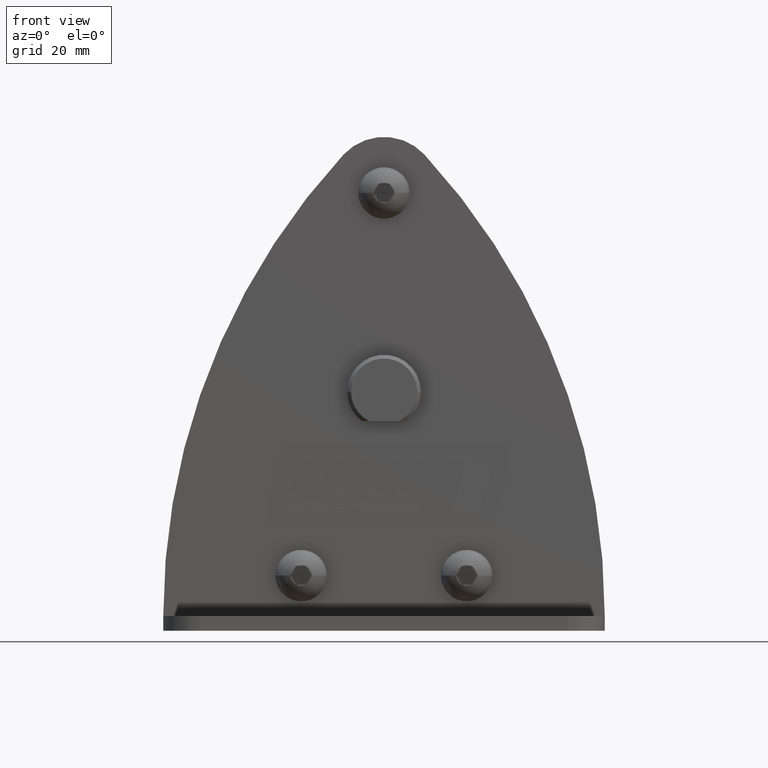
[diagram: clean part render]
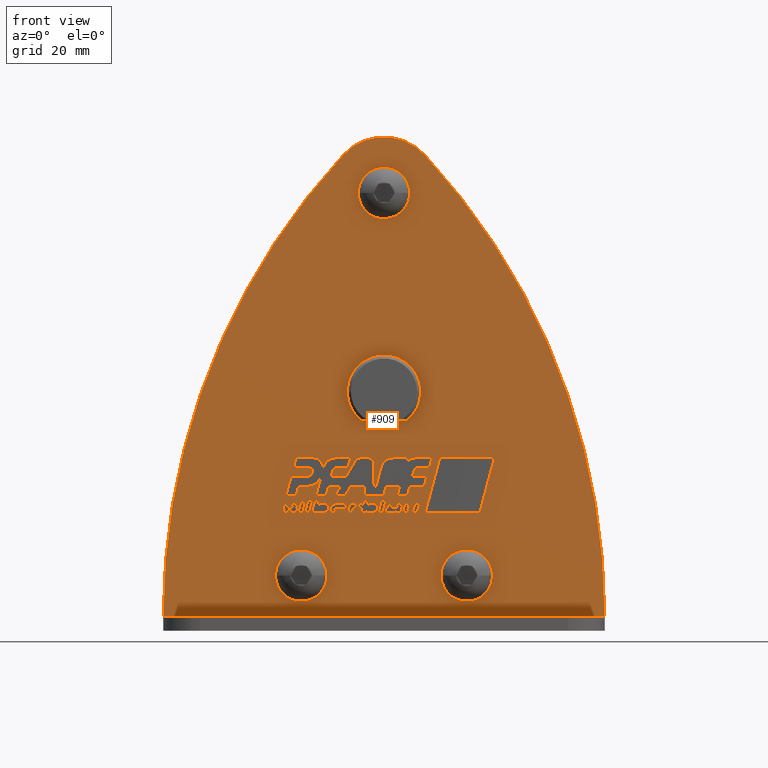
[diagram: same view with one face highlighted and labeled with its STEP entity id]
A machine part, front view. The second image highlights one B-rep face of the part: STEP entity #909.
In plain terms, the highlighted planar face has unit normal (0, -1, 0).
Its self-contained STEP definition (entity closure, byte-faithful):
#909=ADVANCED_FACE('',(#2365,#2366,#2367,#2368,#2369,#2370,#2371,#2372,#2373,#2374,#2375,#2376,#2377,#2378,#2379,#2380,#2381,#2382),#2383,.T.);
#2365=FACE_BOUND('',#4435,.T.);
#2366=FACE_BOUND('',#4436,.T.);
#2367=FACE_BOUND('',#4437,.T.);
#2368=FACE_BOUND('',#4438,.T.);
#2369=FACE_BOUND('',#4439,.T.);
#2370=FACE_BOUND('',#4440,.T.);
#2371=FACE_BOUND('',#4441,.T.);
#2372=FACE_BOUND('',#4442,.T.);
#2373=FACE_BOUND('',#4443,.T.);
#2374=FACE_BOUND('',#4444,.T.);
#2375=FACE_BOUND('',#4445,.T.);
#2376=FACE_BOUND('',#4446,.T.);
#2377=FACE_BOUND('',#4447,.T.);
#2378=FACE_BOUND('',#4448,.T.);
#2379=FACE_BOUND('',#4449,.T.);
#2380=FACE_BOUND('',#4450,.T.);
#2381=FACE_OUTER_BOUND('',#4451,.T.);
#2382=FACE_BOUND('',#4452,.T.);
#2383=PLANE('',#4453);
#4435=EDGE_LOOP('',(#7294,#7295,#7296,#7297));
#4436=EDGE_LOOP('',(#7298,#7299,#7300,#7301));
#4437=EDGE_LOOP('',(#7302,#7303,#7304,#7305));
#4438=EDGE_LOOP('',(#7306,#7307,#7308,#7309));
#4439=EDGE_LOOP('',(#7310,#7311,#7312,#7313));
#4440=EDGE_LOOP('',(#7314,#7315,#7316,#7317,#7318,#7319,#7320,#7321,#7322));
#4441=EDGE_LOOP('',(#7323,#7324,#7325,#7326,#7327,#7328,#7329,#7330,#7331,#7332,#7333,#7334,#7335,#7336,#7337));
#4442=EDGE_LOOP('',(#7338,#7339,#7340,#7341,#7342,#7343,#7344,#7345,#7346,#7347,#7348,#7349,#7350,#7351,#7352,#7353,#7354,#7355,#7356,#7357));
#4443=EDGE_LOOP('',(#7358,#7359,#7360,#7361,#7362,#7363,#7364,#7365,#7366,#7367));
#4444=EDGE_LOOP('',(#7368,#7369,#7370,#7371,#7372,#7373,#7374,#7375,#7376,#7377,#7378,#7379,#7380,#7381,#7382,#7383,#7384));
#4445=EDGE_LOOP('',(#7385,#7386,#7387,#7388,#7389,#7390,#7391,#7392,#7393,#7394,#7395,#7396));
#4446=EDGE_LOOP('',(#7397,#7398,#7399,#7400,#7401,#7402,#7403,#7404,#7405,#7406,#7407,#7408));
#4447=EDGE_LOOP('',(#7409,#7410,#7411,#7412,#7413,#7414,#7415,#7416,#7417,#7418,#7419,#7420,#7421,#7422,#7423,#7424,#7425,#7426,#7427,#7428,#7429,#7430,#7431,#7432,#7433,#7434,#7435,#7436,#7437,#7438,#7439,#7440,#7441,#7442,#7443,#7444,#7445,#7446,#7447,#7448,#7449,#7450,#7451,#7452,#7453,#7454,#7455,#7456,#7457,#7458,#7459,#7460,#7461,#7462));
#4448=EDGE_LOOP('',(#7463,#7464));
#4449=EDGE_LOOP('',(#7465,#7466));
#4450=EDGE_LOOP('',(#7467,#7468));
#4451=EDGE_LOOP('',(#7469,#7470,#7471,#7472));
#4452=EDGE_LOOP('',(#7473,#7474,#7475,#7476));
#4453=AXIS2_PLACEMENT_3D('',#7477,#7478,#7479);
#7294=ORIENTED_EDGE('',*,*,#13026,.T.);
#7295=ORIENTED_EDGE('',*,*,#13031,.T.);
#7296=ORIENTED_EDGE('',*,*,#13035,.T.);
#7297=ORIENTED_EDGE('',*,*,#13038,.T.);
#7298=ORIENTED_EDGE('',*,*,#13041,.T.);
#7299=ORIENTED_EDGE('',*,*,#13042,.T.);
#7300=ORIENTED_EDGE('',*,*,#13043,.T.);
#7301=ORIENTED_EDGE('',*,*,#13044,.T.);
#7302=ORIENTED_EDGE('',*,*,#13045,.T.);
#7303=ORIENTED_EDGE('',*,*,#13046,.T.);
#7304=ORIENTED_EDGE('',*,*,#13047,.T.);
#7305=ORIENTED_EDGE('',*,*,#13048,.T.);
#7306=ORIENTED_EDGE('',*,*,#13049,.T.);
#7307=ORIENTED_EDGE('',*,*,#13050,.T.);
#7308=ORIENTED_EDGE('',*,*,#13051,.T.);
#7309=ORIENTED_EDGE('',*,*,#13052,.T.);
#7310=ORIENTED_EDGE('',*,*,#13053,.T.);
#7311=ORIENTED_EDGE('',*,*,#13054,.T.);
#7312=ORIENTED_EDGE('',*,*,#13055,.T.);
#7313=ORIENTED_EDGE('',*,*,#13056,.T.);
#7314=ORIENTED_EDGE('',*,*,#13057,.T.);
#7315=ORIENTED_EDGE('',*,*,#13058,.T.);
#7316=ORIENTED_EDGE('',*,*,#13059,.T.);
#7317=ORIENTED_EDGE('',*,*,#13060,.T.);
#7318=ORIENTED_EDGE('',*,*,#13061,.T.);
#7319=ORIENTED_EDGE('',*,*,#13062,.T.);
#7320=ORIENTED_EDGE('',*,*,#13063,.T.);
#7321=ORIENTED_EDGE('',*,*,#13064,.T.);
#7322=ORIENTED_EDGE('',*,*,#13065,.T.);
#7323=ORIENTED_EDGE('',*,*,#13066,.T.);
#7324=ORIENTED_EDGE('',*,*,#13067,.T.);
#7325=ORIENTED_EDGE('',*,*,#13068,.T.);
#7326=ORIENTED_EDGE('',*,*,#13069,.T.);
#7327=ORIENTED_EDGE('',*,*,#13070,.T.);
#7328=ORIENTED_EDGE('',*,*,#13071,.T.);
#7329=ORIENTED_EDGE('',*,*,#13072,.T.);
#7330=ORIENTED_EDGE('',*,*,#13073,.T.);
#7331=ORIENTED_EDGE('',*,*,#13074,.T.);
#7332=ORIENTED_EDGE('',*,*,#13075,.T.);
#7333=ORIENTED_EDGE('',*,*,#13076,.T.);
#7334=ORIENTED_EDGE('',*,*,#13077,.T.);
#7335=ORIENTED_EDGE('',*,*,#13078,.T.);
#7336=ORIENTED_EDGE('',*,*,#13079,.T.);
#7337=ORIENTED_EDGE('',*,*,#13080,.T.);
#7338=ORIENTED_EDGE('',*,*,#13081,.T.);
#7339=ORIENTED_EDGE('',*,*,#13082,.T.);
#7340=ORIENTED_EDGE('',*,*,#13083,.T.);
#7341=ORIENTED_EDGE('',*,*,#13084,.T.);
#7342=ORIENTED_EDGE('',*,*,#13085,.T.);
#7343=ORIENTED_EDGE('',*,*,#13086,.T.);
#7344=ORIENTED_EDGE('',*,*,#13087,.T.);
#7345=ORIENTED_EDGE('',*,*,#13088,.T.);
#7346=ORIENTED_EDGE('',*,*,#13089,.T.);
#7347=ORIENTED_EDGE('',*,*,#13090,.T.);
#7348=ORIENTED_EDGE('',*,*,#13091,.T.);
#7349=ORIENTED_EDGE('',*,*,#13092,.T.);
#7350=ORIENTED_EDGE('',*,*,#13093,.T.);
#7351=ORIENTED_EDGE('',*,*,#13094,.T.);
#7352=ORIENTED_EDGE('',*,*,#13095,.T.);
#7353=ORIENTED_EDGE('',*,*,#13096,.T.);
#7354=ORIENTED_EDGE('',*,*,#13097,.T.);
#7355=ORIENTED_EDGE('',*,*,#13098,.T.);
#7356=ORIENTED_EDGE('',*,*,#13099,.T.);
#7357=ORIENTED_EDGE('',*,*,#13100,.T.);
#7358=ORIENTED_EDGE('',*,*,#13101,.T.);
#7359=ORIENTED_EDGE('',*,*,#13102,.T.);
#7360=ORIENTED_EDGE('',*,*,#13103,.T.);
#7361=ORIENTED_EDGE('',*,*,#13104,.T.);
#7362=ORIENTED_EDGE('',*,*,#13105,.T.);
#7363=ORIENTED_EDGE('',*,*,#13106,.T.);
#7364=ORIENTED_EDGE('',*,*,#13107,.T.);
#7365=ORIENTED_EDGE('',*,*,#13108,.T.);
#7366=ORIENTED_EDGE('',*,*,#13109,.T.);
#7367=ORIENTED_EDGE('',*,*,#13110,.T.);
#7368=ORIENTED_EDGE('',*,*,#13111,.T.);
#7369=ORIENTED_EDGE('',*,*,#13112,.T.);
#7370=ORIENTED_EDGE('',*,*,#13113,.T.);
#7371=ORIENTED_EDGE('',*,*,#13114,.T.);
#7372=ORIENTED_EDGE('',*,*,#13115,.T.);
#7373=ORIENTED_EDGE('',*,*,#13116,.T.);
#7374=ORIENTED_EDGE('',*,*,#13117,.T.);
#7375=ORIENTED_EDGE('',*,*,#13118,.T.);
#7376=ORIENTED_EDGE('',*,*,#13119,.T.);
#7377=ORIENTED_EDGE('',*,*,#13120,.T.);
#7378=ORIENTED_EDGE('',*,*,#13121,.T.);
#7379=ORIENTED_EDGE('',*,*,#13122,.T.);
#7380=ORIENTED_EDGE('',*,*,#13123,.T.);
#7381=ORIENTED_EDGE('',*,*,#13124,.T.);
#7382=ORIENTED_EDGE('',*,*,#13125,.T.);
#7383=ORIENTED_EDGE('',*,*,#13126,.T.);
#7384=ORIENTED_EDGE('',*,*,#13127,.T.);
#7385=ORIENTED_EDGE('',*,*,#13128,.T.);
#7386=ORIENTED_EDGE('',*,*,#13129,.T.);
#7387=ORIENTED_EDGE('',*,*,#13130,.T.);
#7388=ORIENTED_EDGE('',*,*,#13131,.T.);
#7389=ORIENTED_EDGE('',*,*,#13132,.T.);
#7390=ORIENTED_EDGE('',*,*,#13133,.T.);
#7391=ORIENTED_EDGE('',*,*,#13134,.T.);
#7392=ORIENTED_EDGE('',*,*,#13135,.T.);
#7393=ORIENTED_EDGE('',*,*,#13136,.T.);
#7394=ORIENTED_EDGE('',*,*,#13137,.T.);
#7395=ORIENTED_EDGE('',*,*,#13138,.T.);
#7396=ORIENTED_EDGE('',*,*,#13139,.T.);
#7397=ORIENTED_EDGE('',*,*,#13140,.T.);
#7398=ORIENTED_EDGE('',*,*,#13141,.T.);
#7399=ORIENTED_EDGE('',*,*,#13142,.T.);
#7400=ORIENTED_EDGE('',*,*,#13143,.T.);
#7401=ORIENTED_EDGE('',*,*,#13144,.T.);
#7402=ORIENTED_EDGE('',*,*,#13145,.T.);
#7403=ORIENTED_EDGE('',*,*,#13146,.T.);
#7404=ORIENTED_EDGE('',*,*,#13147,.T.);
#7405=ORIENTED_EDGE('',*,*,#13148,.T.);
#7406=ORIENTED_EDGE('',*,*,#13149,.T.);
#7407=ORIENTED_EDGE('',*,*,#13150,.T.);
#7408=ORIENTED_EDGE('',*,*,#13151,.T.);
#7409=ORIENTED_EDGE('',*,*,#13152,.T.);
#7410=ORIENTED_EDGE('',*,*,#13153,.T.);
#7411=ORIENTED_EDGE('',*,*,#13154,.T.);
#7412=ORIENTED_EDGE('',*,*,#13155,.T.);
#7413=ORIENTED_EDGE('',*,*,#13156,.T.);
#7414=ORIENTED_EDGE('',*,*,#13157,.T.);
#7415=ORIENTED_EDGE('',*,*,#13158,.T.);
#7416=ORIENTED_EDGE('',*,*,#13159,.T.);
#7417=ORIENTED_EDGE('',*,*,#13160,.T.);
#7418=ORIENTED_EDGE('',*,*,#13161,.T.);
#7419=ORIENTED_EDGE('',*,*,#13162,.T.);
#7420=ORIENTED_EDGE('',*,*,#13163,.T.);
#7421=ORIENTED_EDGE('',*,*,#13164,.T.);
#7422=ORIENTED_EDGE('',*,*,#13165,.T.);
#7423=ORIENTED_EDGE('',*,*,#13166,.T.);
#7424=ORIENTED_EDGE('',*,*,#13167,.T.);
#7425=ORIENTED_EDGE('',*,*,#13168,.T.);
#7426=ORIENTED_EDGE('',*,*,#13169,.T.);
#7427=ORIENTED_EDGE('',*,*,#13170,.T.);
#7428=ORIENTED_EDGE('',*,*,#13171,.T.);
#7429=ORIENTED_EDGE('',*,*,#13172,.T.);
#7430=ORIENTED_EDGE('',*,*,#13173,.T.);
#7431=ORIENTED_EDGE('',*,*,#13174,.T.);
#7432=ORIENTED_EDGE('',*,*,#13175,.T.);
#7433=ORIENTED_EDGE('',*,*,#13176,.T.);
#7434=ORIENTED_EDGE('',*,*,#13177,.T.);
#7435=ORIENTED_EDGE('',*,*,#13178,.T.);
#7436=ORIENTED_EDGE('',*,*,#13179,.T.);
#7437=ORIENTED_EDGE('',*,*,#13180,.T.);
#7438=ORIENTED_EDGE('',*,*,#13181,.T.);
#7439=ORIENTED_EDGE('',*,*,#13182,.T.);
#7440=ORIENTED_EDGE('',*,*,#13183,.T.);
#7441=ORIENTED_EDGE('',*,*,#13184,.T.);
#7442=ORIENTED_EDGE('',*,*,#13185,.T.);
#7443=ORIENTED_EDGE('',*,*,#13186,.T.);
#7444=ORIENTED_EDGE('',*,*,#13187,.T.);
#7445=ORIENTED_EDGE('',*,*,#13188,.T.);
#7446=ORIENTED_EDGE('',*,*,#13189,.T.);
#7447=ORIENTED_EDGE('',*,*,#13190,.T.);
#7448=ORIENTED_EDGE('',*,*,#13191,.T.);
#7449=ORIENTED_EDGE('',*,*,#13192,.T.);
#7450=ORIENTED_EDGE('',*,*,#13193,.T.);
#7451=ORIENTED_EDGE('',*,*,#13194,.T.);
#7452=ORIENTED_EDGE('',*,*,#13195,.T.);
#7453=ORIENTED_EDGE('',*,*,#13196,.T.);
#7454=ORIENTED_EDGE('',*,*,#13197,.T.);
#7455=ORIENTED_EDGE('',*,*,#13198,.T.);
#7456=ORIENTED_EDGE('',*,*,#13199,.T.);
#7457=ORIENTED_EDGE('',*,*,#13200,.T.);
#7458=ORIENTED_EDGE('',*,*,#13201,.T.);
#7459=ORIENTED_EDGE('',*,*,#13202,.T.);
#7460=ORIENTED_EDGE('',*,*,#13203,.T.);
#7461=ORIENTED_EDGE('',*,*,#13204,.T.);
#7462=ORIENTED_EDGE('',*,*,#13205,.T.);
#7463=ORIENTED_EDGE('',*,*,#12897,.T.);
#7464=ORIENTED_EDGE('',*,*,#13206,.T.);
#7465=ORIENTED_EDGE('',*,*,#12499,.T.);
#7466=ORIENTED_EDGE('',*,*,#13207,.T.);
#7467=ORIENTED_EDGE('',*,*,#12880,.T.);
#7468=ORIENTED_EDGE('',*,*,#13208,.T.);
#7469=ORIENTED_EDGE('',*,*,#13209,.T.);
#7470=ORIENTED_EDGE('',*,*,#13210,.F.);
#7471=ORIENTED_EDGE('',*,*,#13211,.F.);
#7472=ORIENTED_EDGE('',*,*,#13212,.F.);
#7473=ORIENTED_EDGE('',*,*,#12850,.T.);
#7474=ORIENTED_EDGE('',*,*,#12854,.T.);
#7475=ORIENTED_EDGE('',*,*,#13213,.T.);
#7476=ORIENTED_EDGE('',*,*,#13214,.T.);
#7477=CARTESIAN_POINT('',(-8.50567618687546E-013,-18.25,-12.6317308560556));
#7478=DIRECTION('',(0.0,-1.0,0.0));
#7479=DIRECTION('',(1.0,0.0,0.0));
#12499=EDGE_CURVE('',#15053,#15055,#15057,.T.);
#12850=EDGE_CURVE('',#15641,#15639,#15642,.T.);
#12854=EDGE_CURVE('',#15639,#15645,#15647,.T.);
#12880=EDGE_CURVE('',#15684,#15688,#15690,.T.);
#12897=EDGE_CURVE('',#15715,#15719,#15721,.T.);
#13026=EDGE_CURVE('',#15935,#15933,#15936,.T.);
#13031=EDGE_CURVE('',#15933,#15941,#15943,.T.);
#13035=EDGE_CURVE('',#15941,#15947,#15949,.T.);
#13038=EDGE_CURVE('',#15947,#15935,#15952,.T.);
#13041=EDGE_CURVE('',#15955,#15956,#15957,.T.);
#13042=EDGE_CURVE('',#15956,#15958,#15959,.T.);
#13043=EDGE_CURVE('',#15958,#15960,#15961,.T.);
#13044=EDGE_CURVE('',#15960,#15955,#15962,.T.);
#13045=EDGE_CURVE('',#15963,#15964,#15965,.T.);
#13046=EDGE_CURVE('',#15964,#15966,#15967,.T.);
#13047=EDGE_CURVE('',#15966,#15968,#15969,.T.);
#13048=EDGE_CURVE('',#15968,#15963,#15970,.T.);
#13049=EDGE_CURVE('',#15971,#15972,#15973,.T.);
#13050=EDGE_CURVE('',#15972,#15974,#15975,.T.);
#13051=EDGE_CURVE('',#15974,#15976,#15977,.T.);
#13052=EDGE_CURVE('',#15976,#15971,#15978,.T.);
#13053=EDGE_CURVE('',#15979,#15980,#15981,.T.);
#13054=EDGE_CURVE('',#15980,#15982,#15983,.T.);
#13055=EDGE_CURVE('',#15982,#15984,#15985,.T.);
#13056=EDGE_CURVE('',#15984,#15979,#15986,.T.);
#13057=EDGE_CURVE('',#15987,#15988,#15989,.T.);
#13058=EDGE_CURVE('',#15988,#15990,#15991,.T.);
#13059=EDGE_CURVE('',#15990,#15992,#15993,.T.);
#13060=EDGE_CURVE('',#15992,#15994,#15995,.T.);
#13061=EDGE_CURVE('',#15994,#15996,#15997,.T.);
#13062=EDGE_CURVE('',#15996,#15998,#15999,.T.);
#13063=EDGE_CURVE('',#15998,#16000,#16001,.T.);
#13064=EDGE_CURVE('',#16000,#16002,#16003,.T.);
#13065=EDGE_CURVE('',#16002,#15987,#16004,.T.);
#13066=EDGE_CURVE('',#16005,#16006,#16007,.T.);
#13067=EDGE_CURVE('',#16006,#16008,#16009,.T.);
#13068=EDGE_CURVE('',#16008,#16010,#16011,.T.);
#13069=EDGE_CURVE('',#16010,#16012,#16013,.T.);
#13070=EDGE_CURVE('',#16012,#16014,#16015,.T.);
#13071=EDGE_CURVE('',#16014,#16016,#16017,.T.);
#13072=EDGE_CURVE('',#16016,#16018,#16019,.T.);
#13073=EDGE_CURVE('',#16018,#16020,#16021,.T.);
#13074=EDGE_CURVE('',#16020,#16022,#16023,.T.);
#13075=EDGE_CURVE('',#16022,#16024,#16025,.T.);
#13076=EDGE_CURVE('',#16024,#16026,#16027,.T.);
#13077=EDGE_CURVE('',#16026,#16028,#16029,.T.);
#13078=EDGE_CURVE('',#16028,#16030,#16031,.T.);
#13079=EDGE_CURVE('',#16030,#16032,#16033,.T.);
#13080=EDGE_CURVE('',#16032,#16005,#16034,.T.);
#13081=EDGE_CURVE('',#16035,#16036,#16037,.T.);
#13082=EDGE_CURVE('',#16036,#16038,#16039,.T.);
#13083=EDGE_CURVE('',#16038,#16040,#16041,.T.);
#13084=EDGE_CURVE('',#16040,#16042,#16043,.T.);
#13085=EDGE_CURVE('',#16042,#16044,#16045,.T.);
#13086=EDGE_CURVE('',#16044,#16046,#16047,.T.);
#13087=EDGE_CURVE('',#16046,#16048,#16049,.T.);
#13088=EDGE_CURVE('',#16048,#16050,#16051,.T.);
#13089=EDGE_CURVE('',#16050,#16052,#16053,.T.);
#13090=EDGE_CURVE('',#16052,#16054,#16055,.T.);
#13091=EDGE_CURVE('',#16054,#16056,#16057,.T.);
#13092=EDGE_CURVE('',#16056,#16058,#16059,.T.);
#13093=EDGE_CURVE('',#16058,#16060,#16061,.T.);
#13094=EDGE_CURVE('',#16060,#16062,#16063,.T.);
#13095=EDGE_CURVE('',#16062,#16064,#16065,.T.);
#13096=EDGE_CURVE('',#16064,#16066,#16067,.T.);
#13097=EDGE_CURVE('',#16066,#16068,#16069,.T.);
#13098=EDGE_CURVE('',#16068,#16070,#16071,.T.);
#13099=EDGE_CURVE('',#16070,#16072,#16073,.T.);
#13100=EDGE_CURVE('',#16072,#16035,#16074,.T.);
#13101=EDGE_CURVE('',#16075,#16076,#16077,.T.);
#13102=EDGE_CURVE('',#16076,#16078,#16079,.T.);
#13103=EDGE_CURVE('',#16078,#16080,#16081,.T.);
#13104=EDGE_CURVE('',#16080,#16082,#16083,.T.);
#13105=EDGE_CURVE('',#16082,#16084,#16085,.T.);
#13106=EDGE_CURVE('',#16084,#16086,#16087,.T.);
#13107=EDGE_CURVE('',#16086,#16088,#16089,.T.);
#13108=EDGE_CURVE('',#16088,#16090,#16091,.T.);
#13109=EDGE_CURVE('',#16090,#16092,#16093,.T.);
#13110=EDGE_CURVE('',#16092,#16075,#16094,.T.);
#13111=EDGE_CURVE('',#16095,#16096,#16097,.T.);
#13112=EDGE_CURVE('',#16096,#16098,#16099,.T.);
#13113=EDGE_CURVE('',#16098,#16100,#16101,.T.);
#13114=EDGE_CURVE('',#16100,#16102,#16103,.T.);
#13115=EDGE_CURVE('',#16102,#16104,#16105,.T.);
#13116=EDGE_CURVE('',#16104,#16106,#16107,.T.);
#13117=EDGE_CURVE('',#16106,#16108,#16109,.T.);
#13118=EDGE_CURVE('',#16108,#16110,#16111,.T.);
#13119=EDGE_CURVE('',#16110,#16112,#16113,.T.);
#13120=EDGE_CURVE('',#16112,#16114,#16115,.T.);
#13121=EDGE_CURVE('',#16114,#16116,#16117,.T.);
#13122=EDGE_CURVE('',#16116,#16118,#16119,.T.);
#13123=EDGE_CURVE('',#16118,#16120,#16121,.T.);
#13124=EDGE_CURVE('',#16120,#16122,#16123,.T.);
#13125=EDGE_CURVE('',#16122,#16124,#16125,.T.);
#13126=EDGE_CURVE('',#16124,#16126,#16127,.T.);
#13127=EDGE_CURVE('',#16126,#16095,#16128,.T.);
#13128=EDGE_CURVE('',#16129,#16130,#16131,.T.);
#13129=EDGE_CURVE('',#16130,#16132,#16133,.T.);
#13130=EDGE_CURVE('',#16132,#16134,#16135,.T.);
#13131=EDGE_CURVE('',#16134,#16136,#16137,.T.);
#13132=EDGE_CURVE('',#16136,#16138,#16139,.T.);
#13133=EDGE_CURVE('',#16138,#16140,#16141,.T.);
#13134=EDGE_CURVE('',#16140,#16142,#16143,.T.);
#13135=EDGE_CURVE('',#16142,#16144,#16145,.T.);
#13136=EDGE_CURVE('',#16144,#16146,#16147,.T.);
#13137=EDGE_CURVE('',#16146,#16148,#16149,.T.);
#13138=EDGE_CURVE('',#16148,#16150,#16151,.T.);
#13139=EDGE_CURVE('',#16150,#16129,#16152,.T.);
#13140=EDGE_CURVE('',#16153,#16154,#16155,.T.);
#13141=EDGE_CURVE('',#16154,#16156,#16157,.T.);
#13142=EDGE_CURVE('',#16156,#16158,#16159,.T.);
#13143=EDGE_CURVE('',#16158,#16160,#16161,.T.);
#13144=EDGE_CURVE('',#16160,#16162,#16163,.T.);
#13145=EDGE_CURVE('',#16162,#16164,#16165,.T.);
#13146=EDGE_CURVE('',#16164,#16166,#16167,.T.);
#13147=EDGE_CURVE('',#16166,#16168,#16169,.T.);
#13148=EDGE_CURVE('',#16168,#16170,#16171,.T.);
#13149=EDGE_CURVE('',#16170,#16172,#16173,.T.);
#13150=EDGE_CURVE('',#16172,#16174,#16175,.T.);
#13151=EDGE_CURVE('',#16174,#16153,#16176,.T.);
#13152=EDGE_CURVE('',#16177,#16178,#16179,.T.);
#13153=EDGE_CURVE('',#16178,#16180,#16181,.T.);
#13154=EDGE_CURVE('',#16180,#16182,#16183,.T.);
#13155=EDGE_CURVE('',#16182,#16184,#16185,.T.);
#13156=EDGE_CURVE('',#16184,#16186,#16187,.T.);
#13157=EDGE_CURVE('',#16186,#16188,#16189,.T.);
#13158=EDGE_CURVE('',#16188,#16190,#16191,.T.);
#13159=EDGE_CURVE('',#16190,#16192,#16193,.T.);
#13160=EDGE_CURVE('',#16192,#16194,#16195,.T.);
#13161=EDGE_CURVE('',#16194,#16196,#16197,.T.);
#13162=EDGE_CURVE('',#16196,#16198,#16199,.T.);
#13163=EDGE_CURVE('',#16198,#16200,#16201,.T.);
#13164=EDGE_CURVE('',#16200,#16202,#16203,.T.);
#13165=EDGE_CURVE('',#16202,#16204,#16205,.T.);
#13166=EDGE_CURVE('',#16204,#16206,#16207,.T.);
#13167=EDGE_CURVE('',#16206,#16208,#16209,.T.);
#13168=EDGE_CURVE('',#16208,#16210,#16211,.T.);
#13169=EDGE_CURVE('',#16210,#16212,#16213,.T.);
#13170=EDGE_CURVE('',#16212,#16214,#16215,.T.);
#13171=EDGE_CURVE('',#16214,#16216,#16217,.T.);
#13172=EDGE_CURVE('',#16216,#16218,#16219,.T.);
#13173=EDGE_CURVE('',#16218,#16220,#16221,.T.);
#13174=EDGE_CURVE('',#16220,#16222,#16223,.T.);
#13175=EDGE_CURVE('',#16222,#16224,#16225,.T.);
#13176=EDGE_CURVE('',#16224,#16226,#16227,.T.);
#13177=EDGE_CURVE('',#16226,#16228,#16229,.T.);
#13178=EDGE_CURVE('',#16228,#16230,#16231,.T.);
#13179=EDGE_CURVE('',#16230,#16232,#16233,.T.);
#13180=EDGE_CURVE('',#16232,#16234,#16235,.T.);
#13181=EDGE_CURVE('',#16234,#16236,#16237,.T.);
#13182=EDGE_CURVE('',#16236,#16238,#16239,.T.);
#13183=EDGE_CURVE('',#16238,#16240,#16241,.T.);
#13184=EDGE_CURVE('',#16240,#16242,#16243,.T.);
#13185=EDGE_CURVE('',#16242,#16244,#16245,.T.);
#13186=EDGE_CURVE('',#16244,#16246,#16247,.T.);
#13187=EDGE_CURVE('',#16246,#16248,#16249,.T.);
#13188=EDGE_CURVE('',#16248,#16250,#16251,.T.);
#13189=EDGE_CURVE('',#16250,#16252,#16253,.T.);
#13190=EDGE_CURVE('',#16252,#16254,#16255,.T.);
#13191=EDGE_CURVE('',#16254,#16256,#16257,.T.);
#13192=EDGE_CURVE('',#16256,#16258,#16259,.T.);
#13193=EDGE_CURVE('',#16258,#16260,#16261,.T.);
#13194=EDGE_CURVE('',#16260,#16262,#16263,.T.);
#13195=EDGE_CURVE('',#16262,#16264,#16265,.T.);
#13196=EDGE_CURVE('',#16264,#16266,#16267,.T.);
#13197=EDGE_CURVE('',#16266,#16268,#16269,.T.);
#13198=EDGE_CURVE('',#16268,#16270,#16271,.T.);
#13199=EDGE_CURVE('',#16270,#16272,#16273,.T.);
#13200=EDGE_CURVE('',#16272,#16274,#16275,.T.);
#13201=EDGE_CURVE('',#16274,#16276,#16277,.T.);
#13202=EDGE_CURVE('',#16276,#16278,#16279,.T.);
#13203=EDGE_CURVE('',#16278,#16280,#16281,.T.);
#13204=EDGE_CURVE('',#16280,#16282,#16283,.T.);
#13205=EDGE_CURVE('',#16282,#16177,#16284,.T.);
#13206=EDGE_CURVE('',#15719,#15715,#16285,.T.);
#13207=EDGE_CURVE('',#15055,#15053,#16286,.T.);
#13208=EDGE_CURVE('',#15688,#15684,#16287,.T.);
#13209=EDGE_CURVE('',#16288,#16289,#16290,.T.);
#13210=EDGE_CURVE('',#16291,#16289,#16292,.T.);
#13211=EDGE_CURVE('',#16293,#16291,#16294,.T.);
#13212=EDGE_CURVE('',#16288,#16293,#16295,.T.);
#13213=EDGE_CURVE('',#15645,#16296,#16297,.T.);
#13214=EDGE_CURVE('',#16296,#15641,#16298,.T.);
#15053=VERTEX_POINT('',#19563);
#15055=VERTEX_POINT('',#19566);
#15057=CIRCLE('',#19569,7.0);
#15639=VERTEX_POINT('',#21880);
#15641=VERTEX_POINT('',#21883);
#15642=CIRCLE('',#21884,10.0);
#15645=VERTEX_POINT('',#21888);
#15647=CIRCLE('',#21891,10.0);
#15684=VERTEX_POINT('',#21936);
#15688=VERTEX_POINT('',#21941);
#15690=CIRCLE('',#21944,7.0);
#15715=VERTEX_POINT('',#21987);
#15719=VERTEX_POINT('',#21992);
#15721=CIRCLE('',#21995,7.0);
#15933=VERTEX_POINT('',#22302);
#15935=VERTEX_POINT('',#22305);
#15936=LINE('',#22306,#22307);
#15941=VERTEX_POINT('',#22314);
#15943=LINE('',#22317,#22318);
#15947=VERTEX_POINT('',#22323);
#15949=LINE('',#22326,#22327);
#15952=LINE('',#22331,#22332);
#15955=VERTEX_POINT('',#22335);
#15956=VERTEX_POINT('',#22336);
#15957=LINE('',#22337,#22338);
#15958=VERTEX_POINT('',#22339);
#15959=LINE('',#22340,#22341);
#15960=VERTEX_POINT('',#22342);
#15961=LINE('',#22343,#22344);
#15962=LINE('',#22345,#22346);
#15963=VERTEX_POINT('',#22347);
#15964=VERTEX_POINT('',#22348);
#15965=LINE('',#22349,#22350);
#15966=VERTEX_POINT('',#22351);
#15967=LINE('',#22352,#22353);
#15968=VERTEX_POINT('',#22354);
#15969=LINE('',#22355,#22356);
#15970=LINE('',#22357,#22358);
#15971=VERTEX_POINT('',#22359);
#15972=VERTEX_POINT('',#22360);
#15973=LINE('',#22361,#22362);
#15974=VERTEX_POINT('',#22363);
#15975=LINE('',#22364,#22365);
#15976=VERTEX_POINT('',#22366);
#15977=LINE('',#22367,#22368);
#15978=LINE('',#22369,#22370);
#15979=VERTEX_POINT('',#22371);
#15980=VERTEX_POINT('',#22372);
#15981=LINE('',#22373,#22374);
#15982=VERTEX_POINT('',#22375);
#15983=LINE('',#22376,#22377);
#15984=VERTEX_POINT('',#22378);
#15985=LINE('',#22379,#22380);
#15986=LINE('',#22381,#22382);
#15987=VERTEX_POINT('',#22383);
#15988=VERTEX_POINT('',#22384);
#15989=LINE('',#22385,#22386);
#15990=VERTEX_POINT('',#22387);
#15991=CIRCLE('',#22388,1.90297988906065);
#15992=VERTEX_POINT('',#22389);
#15993=CIRCLE('',#22390,0.695338885984296);
#15994=VERTEX_POINT('',#22391);
#15995=LINE('',#22392,#22393);
#15996=VERTEX_POINT('',#22394);
#15997=LINE('',#22395,#22396);
#15998=VERTEX_POINT('',#22397);
#15999=LINE('',#22398,#22399);
#16000=VERTEX_POINT('',#22400);
#16001=LINE('',#22401,#22402);
#16002=VERTEX_POINT('',#22403);
#16003=LINE('',#22404,#22405);
#16004=CIRCLE('',#22406,2.31779625505053);
#16005=VERTEX_POINT('',#22407);
#16006=VERTEX_POINT('',#22408);
#16007=CIRCLE('',#22409,0.347669272294889);
#16008=VERTEX_POINT('',#22410);
#16009=CIRCLE('',#22411,1.7383472178957);
#16010=VERTEX_POINT('',#22412);
#16011=CIRCLE('',#22413,0.695338906612462);
#16012=VERTEX_POINT('',#22414);
#16013=LINE('',#22415,#22416);
#16014=VERTEX_POINT('',#22417);
#16015=LINE('',#22418,#22419);
#16016=VERTEX_POINT('',#22420);
#16017=LINE('',#22421,#22422);
#16018=VERTEX_POINT('',#22423);
#16019=LINE('',#22424,#22425);
#16020=VERTEX_POINT('',#22426);
#16021=LINE('',#22427,#22428);
#16022=VERTEX_POINT('',#22429);
#16023=CIRCLE('',#22430,0.781604153476139);
#16024=VERTEX_POINT('',#22431);
#16025=CIRCLE('',#22432,3.86299373980962);
#16026=VERTEX_POINT('',#22433);
#16027=CIRCLE('',#22434,1.93149685296327);
#16028=VERTEX_POINT('',#22435);
#16029=CIRCLE('',#22436,0.695338842299168);
#16030=VERTEX_POINT('',#22437);
#16031=LINE('',#22438,#22439);
#16032=VERTEX_POINT('',#22440);
#16033=LINE('',#22441,#22442);
#16034=LINE('',#22443,#22444);
#16035=VERTEX_POINT('',#22445);
#16036=VERTEX_POINT('',#22446);
#16037=CIRCLE('',#22447,1.64177234290645);
#16038=VERTEX_POINT('',#22448);
#16039=CIRCLE('',#22449,7.72598749988695);
#16040=VERTEX_POINT('',#22450);
#16041=CIRCLE('',#22451,0.695338874045311);
#16042=VERTEX_POINT('',#22452);
#16043=LINE('',#22453,#22454);
#16044=VERTEX_POINT('',#22455);
#16045=CIRCLE('',#22456,0.772598749071972);
#16046=VERTEX_POINT('',#22457);
#16047=CIRCLE('',#22458,1.54519749756382);
#16048=VERTEX_POINT('',#22459);
#16049=CIRCLE('',#22460,0.13520478329685);
#16050=VERTEX_POINT('',#22461);
#16051=LINE('',#22462,#22463);
#16052=VERTEX_POINT('',#22464);
#16053=CIRCLE('',#22465,3.86299374194257);
#16054=VERTEX_POINT('',#22466);
#16055=CIRCLE('',#22467,0.5562710997008);
#16056=VERTEX_POINT('',#22468);
#16057=CIRCLE('',#22469,1.64177234512556);
#16058=VERTEX_POINT('',#22470);
#16059=CIRCLE('',#22471,6.32701097862831);
#16060=VERTEX_POINT('',#22472);
#16061=CIRCLE('',#22473,7.72598748716319);
#16062=VERTEX_POINT('',#22474);
#16063=CIRCLE('',#22475,0.695338880201633);
#16064=VERTEX_POINT('',#22476);
#16065=LINE('',#22477,#22478);
#16066=VERTEX_POINT('',#22479);
#16067=CIRCLE('',#22480,0.772598749071971);
#16068=VERTEX_POINT('',#22481);
#16069=CIRCLE('',#22482,1.54519749756382);
#16070=VERTEX_POINT('',#22483);
#16071=CIRCLE('',#22484,0.13520478329685);
#16072=VERTEX_POINT('',#22485);
#16073=LINE('',#22486,#22487);
#16074=CIRCLE('',#22488,0.556271097379784);
#16075=VERTEX_POINT('',#22489);
#16076=VERTEX_POINT('',#22490);
#16077=LINE('',#22491,#22492);
#16078=VERTEX_POINT('',#22493);
#16079=CIRCLE('',#22494,0.432655306455157);
#16080=VERTEX_POINT('',#22495);
#16081=CIRCLE('',#22496,1.5451974971095);
#16082=VERTEX_POINT('',#22497);
#16083=LINE('',#22498,#22499);
#16084=VERTEX_POINT('',#22500);
#16085=CIRCLE('',#22501,1.93149687856003);
#16086=VERTEX_POINT('',#22502);
#16087=CIRCLE('',#22503,6.180790001498);
#16088=VERTEX_POINT('',#22504);
#16089=CIRCLE('',#22505,0.965748433894455);
#16090=VERTEX_POINT('',#22506);
#16091=CIRCLE('',#22507,2.00875675443065);
#16092=VERTEX_POINT('',#22508);
#16093=CIRCLE('',#22509,8.72617182894747);
#16094=CIRCLE('',#22510,1.14344616300504);
#16095=VERTEX_POINT('',#22511);
#16096=VERTEX_POINT('',#22512);
#16097=CIRCLE('',#22513,0.579449085134155);
#16098=VERTEX_POINT('',#22514);
#16099=LINE('',#22515,#22516);
#16100=VERTEX_POINT('',#22517);
#16101=LINE('',#22518,#22519);
#16102=VERTEX_POINT('',#22520);
#16103=CIRCLE('',#22521,1.931496875);
#16104=VERTEX_POINT('',#22522);
#16105=LINE('',#22523,#22524);
#16106=VERTEX_POINT('',#22525);
#16107=CIRCLE('',#22526,3.86299374802007);
#16108=VERTEX_POINT('',#22527);
#16109=CIRCLE('',#22528,0.540819096426996);
#16110=VERTEX_POINT('',#22529);
#16111=CIRCLE('',#22530,0.965748437621186);
#16112=VERTEX_POINT('',#22531);
#16113=LINE('',#22532,#22533);
#16114=VERTEX_POINT('',#22534);
#16115=CIRCLE('',#22535,0.193149693552532);
#16116=VERTEX_POINT('',#22536);
#16117=CIRCLE('',#22537,3.86299373960414);
#16118=VERTEX_POINT('',#22538);
#16119=CIRCLE('',#22539,0.695338879512338);
#16120=VERTEX_POINT('',#22540);
#16121=LINE('',#22541,#22542);
#16122=VERTEX_POINT('',#22543);
#16123=CIRCLE('',#22544,0.965748435644311);
#16124=VERTEX_POINT('',#22545);
#16125=CIRCLE('',#22546,7.72598748518318);
#16126=VERTEX_POINT('',#22547);
#16127=CIRCLE('',#22548,0.579449085134151);
#16128=LINE('',#22549,#22550);
#16129=VERTEX_POINT('',#22551);
#16130=VERTEX_POINT('',#22552);
#16131=LINE('',#22553,#22554);
#16132=VERTEX_POINT('',#22555);
#16133=LINE('',#22556,#22557);
#16134=VERTEX_POINT('',#22558);
#16135=LINE('',#22559,#22560);
#16136=VERTEX_POINT('',#22561);
#16137=CIRCLE('',#22562,1.93149687176934);
#16138=VERTEX_POINT('',#22563);
#16139=CIRCLE('',#22564,3.70847400009757);
#16140=VERTEX_POINT('',#22565);
#16141=CIRCLE('',#22566,1.93149687819647);
#16142=VERTEX_POINT('',#22567);
#16143=CIRCLE('',#22568,0.927118493825275);
#16144=VERTEX_POINT('',#22569);
#16145=CIRCLE('',#22570,1.93149687612774);
#16146=VERTEX_POINT('',#22571);
#16147=CIRCLE('',#22572,3.70847399994951);
#16148=VERTEX_POINT('',#22573);
#16149=CIRCLE('',#22574,1.83492203396171);
#16150=VERTEX_POINT('',#22575);
#16151=LINE('',#22576,#22577);
#16152=LINE('',#22578,#22579);
#16153=VERTEX_POINT('',#22580);
#16154=VERTEX_POINT('',#22581);
#16155=CIRCLE('',#22582,1.93149687612774);
#16156=VERTEX_POINT('',#22583);
#16157=CIRCLE('',#22584,3.70847399994952);
#16158=VERTEX_POINT('',#22585);
#16159=CIRCLE('',#22586,1.8349220339617);
#16160=VERTEX_POINT('',#22587);
#16161=LINE('',#22588,#22589);
#16162=VERTEX_POINT('',#22590);
#16163=LINE('',#22591,#22592);
#16164=VERTEX_POINT('',#22593);
#16165=LINE('',#22594,#22595);
#16166=VERTEX_POINT('',#22596);
#16167=LINE('',#22597,#22598);
#16168=VERTEX_POINT('',#22599);
#16169=LINE('',#22600,#22601);
#16170=VERTEX_POINT('',#22602);
#16171=CIRCLE('',#22603,1.93149687176933);
#16172=VERTEX_POINT('',#22604);
#16173=CIRCLE('',#22605,3.70847399605884);
#16174=VERTEX_POINT('',#22606);
#16175=CIRCLE('',#22607,1.93149687819647);
#16176=CIRCLE('',#22608,0.927118493825271);
#16177=VERTEX_POINT('',#22609);
#16178=VERTEX_POINT('',#22610);
#16179=LINE('',#22611,#22612);
#16180=VERTEX_POINT('',#22613);
#16181=LINE('',#22614,#22615);
#16182=VERTEX_POINT('',#22616);
#16183=CIRCLE('',#22617,1.313417875);
#16184=VERTEX_POINT('',#22618);
#16185=LINE('',#22619,#22620);
#16186=VERTEX_POINT('',#22621);
#16187=CIRCLE('',#22622,0.788050724999999);
#16188=VERTEX_POINT('',#22623);
#16189=LINE('',#22624,#22625);
#16190=VERTEX_POINT('',#22626);
#16191=LINE('',#22627,#22628);
#16192=VERTEX_POINT('',#22629);
#16193=LINE('',#22630,#22631);
#16194=VERTEX_POINT('',#22632);
#16195=CIRCLE('',#22633,2.70409562739031);
#16196=VERTEX_POINT('',#22634);
#16197=LINE('',#22635,#22636);
#16198=VERTEX_POINT('',#22637);
#16199=CIRCLE('',#22638,3.322174625);
#16200=VERTEX_POINT('',#22639);
#16201=LINE('',#22640,#22641);
#16202=VERTEX_POINT('',#22642);
#16203=LINE('',#22643,#22644);
#16204=VERTEX_POINT('',#22645);
#16205=LINE('',#22646,#22647);
#16206=VERTEX_POINT('',#22648);
#16207=CIRCLE('',#22649,0.788050724999999);
#16208=VERTEX_POINT('',#22650);
#16209=LINE('',#22651,#22652);
#16210=VERTEX_POINT('',#22653);
#16211=LINE('',#22654,#22655);
#16212=VERTEX_POINT('',#22656);
#16213=LINE('',#22657,#22658);
#16214=VERTEX_POINT('',#22659);
#16215=CIRCLE('',#22660,1.467937625);
#16216=VERTEX_POINT('',#22661);
#16217=LINE('',#22662,#22663);
#16218=VERTEX_POINT('',#22664);
#16219=CIRCLE('',#22665,1.46793761590579);
#16220=VERTEX_POINT('',#22666);
#16221=LINE('',#22667,#22668);
#16222=VERTEX_POINT('',#22669);
#16223=LINE('',#22670,#22671);
#16224=VERTEX_POINT('',#22672);
#16225=CIRCLE('',#22673,3.322174625);
#16226=VERTEX_POINT('',#22674);
#16227=LINE('',#22675,#22676);
#16228=VERTEX_POINT('',#22677);
#16229=LINE('',#22678,#22679);
#16230=VERTEX_POINT('',#22680);
#16231=CIRCLE('',#22681,3.322174625);
#16232=VERTEX_POINT('',#22682);
#16233=LINE('',#22683,#22684);
#16234=VERTEX_POINT('',#22685);
#16235=LINE('',#22686,#22687);
#16236=VERTEX_POINT('',#22688);
#16237=LINE('',#22689,#22690);
#16238=VERTEX_POINT('',#22691);
#16239=CIRCLE('',#22692,0.788050724999999);
#16240=VERTEX_POINT('',#22693);
#16241=LINE('',#22694,#22695);
#16242=VERTEX_POINT('',#22696);
#16243=LINE('',#22697,#22698);
#16244=VERTEX_POINT('',#22699);
#16245=LINE('',#22700,#22701);
#16246=VERTEX_POINT('',#22702);
#16247=LINE('',#22703,#22704);
#16248=VERTEX_POINT('',#22705);
#16249=LINE('',#22706,#22707);
#16250=VERTEX_POINT('',#22708);
#16251=LINE('',#22709,#22710);
#16252=VERTEX_POINT('',#22711);
#16253=LINE('',#22712,#22713);
#16254=VERTEX_POINT('',#22714);
#16255=LINE('',#22715,#22716);
#16256=VERTEX_POINT('',#22717);
#16257=LINE('',#22718,#22719);
#16258=VERTEX_POINT('',#22720);
#16259=LINE('',#22721,#22722);
#16260=VERTEX_POINT('',#22723);
#16261=LINE('',#22724,#22725);
#16262=VERTEX_POINT('',#22726);
#16263=LINE('',#22727,#22728);
#16264=VERTEX_POINT('',#22729);
#16265=LINE('',#22730,#22731);
#16266=VERTEX_POINT('',#22732);
#16267=LINE('',#22733,#22734);
#16268=VERTEX_POINT('',#22735);
#16269=LINE('',#22736,#22737);
#16270=VERTEX_POINT('',#22738);
#16271=LINE('',#22739,#22740);
#16272=VERTEX_POINT('',#22741);
#16273=LINE('',#22742,#22743);
#16274=VERTEX_POINT('',#22744);
#16275=LINE('',#22745,#22746);
#16276=VERTEX_POINT('',#22747);
#16277=LINE('',#22748,#22749);
#16278=VERTEX_POINT('',#22750);
#16279=CIRCLE('',#22751,3.631214125);
#16280=VERTEX_POINT('',#22752);
#16281=LINE('',#22753,#22754);
#16282=VERTEX_POINT('',#22755);
#16283=LINE('',#22756,#22757);
#16284=LINE('',#22758,#22759);
#16285=CIRCLE('',#22760,7.0);
#16286=CIRCLE('',#22761,7.0);
#16287=CIRCLE('',#22762,7.0);
#16288=VERTEX_POINT('',#22763);
#16289=VERTEX_POINT('',#22764);
#16290=LINE('',#22765,#22766);
#16291=VERTEX_POINT('',#22767);
#16292=CIRCLE('',#22768,184.9999999343);
#16293=VERTEX_POINT('',#22769);
#16294=CIRCLE('',#22770,14.9999999822);
#16295=CIRCLE('',#22771,184.9999999343);
#16296=VERTEX_POINT('',#22772);
#16297=CIRCLE('',#22773,10.0);
#16298=LINE('',#22774,#22775);
#19563=CARTESIAN_POINT('',(29.5,-18.25,-50.0));
#19566=CARTESIAN_POINT('',(15.5,-18.25,-50.0));
#19569=AXIS2_PLACEMENT_3D('',#26694,#26695,#26696);
#21880=CARTESIAN_POINT('',(-10.0,-18.25,1.22464679914735E-015));
#21883=CARTESIAN_POINT('',(-6.0,-18.25,-8.0));
#21884=AXIS2_PLACEMENT_3D('',#27169,#27170,#27171);
#21888=CARTESIAN_POINT('',(10.0,-18.25,-1.22464679914735E-015));
#21891=AXIS2_PLACEMENT_3D('',#27174,#27175,#27176);
#21936=CARTESIAN_POINT('',(7.0,-18.25,54.0));
#21941=CARTESIAN_POINT('',(-7.0,-18.25,54.0));
#21944=AXIS2_PLACEMENT_3D('',#27214,#27215,#27216);
#21987=CARTESIAN_POINT('',(-15.5,-18.25,-50.0));
#21992=CARTESIAN_POINT('',(-29.5,-18.25,-50.0));
#21995=AXIS2_PLACEMENT_3D('',#27237,#27238,#27239);
#22302=CARTESIAN_POINT('',(26.0,-18.25,-33.0));
#22305=CARTESIAN_POINT('',(30.0161339476721,-18.25,-18.0115842546974));
#22306=CARTESIAN_POINT('',(29.6832657490661,-18.25,-19.2538652677567));
#22307=VECTOR('',#27396,1.0);
#22314=CARTESIAN_POINT('',(11.166104,-18.25,-33.0));
#22317=CARTESIAN_POINT('',(12.9999999999996,-18.25,-33.0));
#22318=VECTOR('',#27400,1.0);
#22323=CARTESIAN_POINT('',(15.182237947672,-18.25,-18.0115842546974));
#22326=CARTESIAN_POINT('',(13.338144094167,-18.25,-24.8938361192578));
#22327=VECTOR('',#27403,1.0);
#22331=CARTESIAN_POINT('',(7.59111897383559,-18.25,-18.0115842546974));
#22332=VECTOR('',#27405,1.0);
#22335=CARTESIAN_POINT('',(-21.2261402731926,-18.25,-29.6005655046972));
#22336=CARTESIAN_POINT('',(-21.3503506033828,-18.25,-30.0641247485165));
#22337=CARTESIAN_POINT('',(-18.3940949174873,-18.25,-19.0312287873559));
#22338=VECTOR('',#27406,1.0);
#22339=CARTESIAN_POINT('',(-22.6301155602224,-18.25,-30.0641247485165));
#22340=CARTESIAN_POINT('',(-10.6751753016918,-18.25,-30.0641247485165));
#22341=VECTOR('',#27407,1.0);
#22342=CARTESIAN_POINT('',(-22.5059052300322,-18.25,-29.6005655046972));
#22343=CARTESIAN_POINT('',(-19.6931010377602,-18.25,-19.1030377838999));
#22344=VECTOR('',#27408,1.0);
#22345=CARTESIAN_POINT('',(-11.2529526150165,-18.25,-29.6005655046972));
#22346=VECTOR('',#27409,1.0);
#22347=CARTESIAN_POINT('',(-23.3836581929576,-18.25,-32.8763842000617));
#22348=CARTESIAN_POINT('',(-22.7295409534163,-18.25,-30.4351853857717));
#22349=CARTESIAN_POINT('',(-20.069872547017,-18.25,-20.5091675901547));
#22350=VECTOR('',#27410,1.0);
#22351=CARTESIAN_POINT('',(-21.4497759965767,-18.25,-30.4351853857717));
#22352=CARTESIAN_POINT('',(-11.3647704767086,-18.25,-30.4351853857717));
#22353=VECTOR('',#27411,1.0);
#22354=CARTESIAN_POINT('',(-22.103893267022,-18.25,-32.8763842000617));
#22355=CARTESIAN_POINT('',(-18.5059128129668,-18.25,-19.4485387430856));
#22356=VECTOR('',#27412,1.0);
#22357=CARTESIAN_POINT('',(-11.0519466335114,-18.25,-32.8763842000617));
#22358=VECTOR('',#27413,1.0);
#22359=CARTESIAN_POINT('',(-0.700784945176697,-18.25,-29.6005655046976));
#22360=CARTESIAN_POINT('',(0.578979980759073,-18.25,-29.6005655046976));
#22361=CARTESIAN_POINT('',(-0.350392472588774,-18.25,-29.6005655046976));
#22362=VECTOR('',#27414,1.0);
#22363=CARTESIAN_POINT('',(-0.298772982166341,-18.25,-32.8763842000617));
#22364=CARTESIAN_POINT('',(2.68069213688875,-18.25,-21.7568688564088));
#22365=VECTOR('',#27415,1.0);
#22366=CARTESIAN_POINT('',(-1.57853790810191,-18.25,-32.8763842000617));
#22367=CARTESIAN_POINT('',(-0.149386491083596,-18.25,-32.8763842000617));
#22368=VECTOR('',#27416,1.0);
#22369=CARTESIAN_POINT('',(1.00491472578396,-18.25,-23.2348075900924));
#22370=VECTOR('',#27417,1.0);
#22371=CARTESIAN_POINT('',(-20.6674763421521,-18.25,-29.6005655046972));
#22372=CARTESIAN_POINT('',(-19.3877114162164,-18.25,-29.6005655046972));
#22373=CARTESIAN_POINT('',(-10.3337381710765,-18.25,-29.6005655046972));
#22374=VECTOR('',#27418,1.0);
#22375=CARTESIAN_POINT('',(-20.2654643791418,-18.25,-32.8763842000617));
#22376=CARTESIAN_POINT('',(-16.6172419213769,-18.25,-19.2610324589928));
#22377=VECTOR('',#27419,1.0);
#22378=CARTESIAN_POINT('',(-21.5452293050773,-18.25,-32.8763842000617));
#22379=CARTESIAN_POINT('',(-10.1327321895713,-18.25,-32.8763842000617));
#22380=VECTOR('',#27420,1.0);
#22381=CARTESIAN_POINT('',(-18.293019332482,-18.25,-20.7389711926771));
#22382=VECTOR('',#27421,1.0);
#22383=CARTESIAN_POINT('',(-6.02838260681872,-18.25,-30.5437804213301));
#22384=CARTESIAN_POINT('',(-6.27333763643804,-18.25,-31.4579649507297));
#22385=CARTESIAN_POINT('',(-3.58746366011234,-18.25,-21.4341477591018));
#22386=VECTOR('',#27422,1.0);
#22387=CARTESIAN_POINT('',(-8.0535963056462,-18.25,-31.5123315801082));
#22388=AXIS2_PLACEMENT_3D('',#27423,#27424,#27425);
#22389=CARTESIAN_POINT('',(-8.38123624745045,-18.25,-31.936646141613));
#22390=AXIS2_PLACEMENT_3D('',#27426,#27427,#27428);
#22391=CARTESIAN_POINT('',(-8.63303832532769,-18.25,-32.8763842000617));
#22392=CARTESIAN_POINT('',(-5.68740340193312,-18.25,-21.8831260540389));
#22393=VECTOR('',#27429,1.0);
#22394=CARTESIAN_POINT('',(-9.91280325126347,-18.25,-32.8763842000617));
#22395=CARTESIAN_POINT('',(-4.31651916266427,-18.25,-32.8763842000617));
#22396=VECTOR('',#27430,1.0);
#22397=CARTESIAN_POINT('',(-9.25868570268268,-18.25,-30.4351843504894));
#22398=CARTESIAN_POINT('',(-7.05020554267757,-18.25,-22.1930244419447));
#22399=VECTOR('',#27431,1.0);
#22400=CARTESIAN_POINT('',(-7.97892077674711,-18.25,-30.4351843504894));
#22401=CARTESIAN_POINT('',(-4.62934285134177,-18.25,-30.4351843504894));
#22402=VECTOR('',#27432,1.0);
#22403=CARTESIAN_POINT('',(-8.09889874849752,-18.25,-30.8829481997195));
#22404=CARTESIAN_POINT('',(-5.48624571644127,-18.25,-21.1323951501154));
#22405=VECTOR('',#27433,1.0);
#22406=AXIS2_PLACEMENT_3D('',#27434,#27435,#27436);
#22407=CARTESIAN_POINT('',(6.55747703249654,-18.25,-31.8574547384527));
#22408=CARTESIAN_POINT('',(6.82826575989919,-18.25,-32.2889707203235));
#22409=AXIS2_PLACEMENT_3D('',#27437,#27438,#27439);
#22410=CARTESIAN_POINT('',(7.52835204130226,-18.25,-32.2787429996933));
#22411=AXIS2_PLACEMENT_3D('',#27440,#27441,#27442);
#22412=CARTESIAN_POINT('',(8.05003144925188,-18.25,-31.7797353947445));
#22413=AXIS2_PLACEMENT_3D('',#27443,#27444,#27445);
#22414=CARTESIAN_POINT('',(8.41030256676814,-18.25,-30.4351841839114));
#22415=CARTESIAN_POINT('',(10.1739058090979,-18.25,-23.8533219151531));
#22416=VECTOR('',#27446,1.0);
#22417=CARTESIAN_POINT('',(9.69006758541548,-18.25,-30.4351841839114));
#22418=CARTESIAN_POINT('',(4.20515128338364,-18.25,-30.4351841839114));
#22419=VECTOR('',#27447,1.0);
#22420=CARTESIAN_POINT('',(9.03595025316262,-18.25,-32.8763840334838));
#22421=CARTESIAN_POINT('',(11.5909431323569,-18.25,-23.3410179381296));
#22422=VECTOR('',#27448,1.0);
#22423=CARTESIAN_POINT('',(7.75618523451508,-18.25,-32.8763840334838));
#22424=CARTESIAN_POINT('',(4.51797512658088,-18.25,-32.8763840334838));
#22425=VECTOR('',#27449,1.0);
#22426=CARTESIAN_POINT('',(7.85616692971304,-18.25,-32.5032474898312));
#22427=CARTESIAN_POINT('',(10.0269849539026,-18.25,-24.4016491638484));
#22428=VECTOR('',#27450,1.0);
#22429=CARTESIAN_POINT('',(7.5129940324684,-18.25,-32.752367921131));
#22430=AXIS2_PLACEMENT_3D('',#27451,#27452,#27453);
#22431=CARTESIAN_POINT('',(6.41562762352944,-18.25,-32.9834368875034));
#22432=AXIS2_PLACEMENT_3D('',#27454,#27455,#27456);
#22433=CARTESIAN_POINT('',(5.67523549479422,-18.25,-32.8845917885808));
#22434=AXIS2_PLACEMENT_3D('',#27457,#27458,#27459);
#22435=CARTESIAN_POINT('',(5.22713771778944,-18.25,-32.0462006567249));
#22436=AXIS2_PLACEMENT_3D('',#27460,#27461,#27462);
#22437=CARTESIAN_POINT('',(5.65880810890289,-18.25,-30.4351843504894));
#22438=CARTESIAN_POINT('',(7.4788700038288,-18.25,-23.6426188851572));
#22439=VECTOR('',#27463,1.0);
#22440=CARTESIAN_POINT('',(6.93857312755042,-18.25,-30.4351843504894));
#22441=CARTESIAN_POINT('',(2.82940405445102,-18.25,-30.4351843504894));
#22442=VECTOR('',#27464,1.0);
#22443=CARTESIAN_POINT('',(8.93160626243061,-18.25,-22.9970813450805));
#22444=VECTOR('',#27465,1.0);
#22445=CARTESIAN_POINT('',(-23.6612953324775,-18.25,-32.351052256316));
#22446=CARTESIAN_POINT('',(-24.6317976273486,-18.25,-32.8877099408792));
#22447=AXIS2_PLACEMENT_3D('',#27466,#27467,#27468);
#22448=CARTESIAN_POINT('',(-27.2642709722059,-18.25,-32.8597811146821));
#22449=AXIS2_PLACEMENT_3D('',#27469,#27470,#27471);
#22450=CARTESIAN_POINT('',(-27.8311272547895,-18.25,-32.2377117704396));
#22451=AXIS2_PLACEMENT_3D('',#27472,#27473,#27474);
#22452=CARTESIAN_POINT('',(-26.3218321621994,-18.25,-32.2377117704397));
#22453=CARTESIAN_POINT('',(-13.9155636273952,-18.25,-32.2377117704396));
#22454=VECTOR('',#27475,1.0);
#22455=CARTESIAN_POINT('',(-25.9380109348207,-18.25,-32.4171783295219));
#22456=AXIS2_PLACEMENT_3D('',#27476,#27477,#27478);
#22457=CARTESIAN_POINT('',(-25.0843725985415,-18.25,-32.31215008999));
#22458=AXIS2_PLACEMENT_3D('',#27479,#27480,#27481);
#22459=CARTESIAN_POINT('',(-25.1335345635415,-18.25,-32.0527094795231));
#22460=AXIS2_PLACEMENT_3D('',#27482,#27483,#27484);
#22461=CARTESIAN_POINT('',(-26.6731890507193,-18.25,-32.0066491631665));
#22462=CARTESIAN_POINT('',(-12.8682433978212,-18.25,-32.4196380313531));
#22463=VECTOR('',#27485,1.0);
#22464=CARTESIAN_POINT('',(-27.1080105501931,-18.25,-31.968974374511));
#22465=AXIS2_PLACEMENT_3D('',#27486,#27487,#27488);
#22466=CARTESIAN_POINT('',(-27.3582158405737,-18.25,-31.0712646480031));
#22467=AXIS2_PLACEMENT_3D('',#27489,#27490,#27491);
#22468=CARTESIAN_POINT('',(-26.4240633871527,-18.25,-30.5409154119136));
#22469=AXIS2_PLACEMENT_3D('',#27492,#27493,#27494);
#22470=CARTESIAN_POINT('',(-24.8150813297726,-18.25,-30.4517204937316));
#22471=AXIS2_PLACEMENT_3D('',#27495,#27496,#27497);
#22472=CARTESIAN_POINT('',(-23.9546161679782,-18.25,-30.562897402459));
#22473=AXIS2_PLACEMENT_3D('',#27498,#27499,#27500);
#22474=CARTESIAN_POINT('',(-23.3897111371218,-18.25,-31.184605136912));
#22475=AXIS2_PLACEMENT_3D('',#27501,#27502,#27503);
#22476=CARTESIAN_POINT('',(-24.817656970986,-18.25,-31.184605136912));
#22477=CARTESIAN_POINT('',(-11.6948555685613,-18.25,-31.184605136912));
#22478=VECTOR('',#27504,1.0);
#22479=CARTESIAN_POINT('',(-25.2014781983645,-18.25,-31.0051385778298));
#22480=AXIS2_PLACEMENT_3D('',#27505,#27506,#27507);
#22481=CARTESIAN_POINT('',(-26.0551165347634,-18.25,-31.1101668171206));
#22482=AXIS2_PLACEMENT_3D('',#27508,#27509,#27510);
#22483=CARTESIAN_POINT('',(-26.0059545696439,-18.25,-31.3696074278286));
#22484=AXIS2_PLACEMENT_3D('',#27511,#27512,#27513);
#22485=CARTESIAN_POINT('',(-24.0624443588949,-18.25,-31.4277494950988));
#22486=CARTESIAN_POINT('',(-13.294634737448,-18.25,-31.749879375302));
#22487=VECTOR('',#27514,1.0);
#22488=AXIS2_PLACEMENT_3D('',#27515,#27516,#27517);
#22489=CARTESIAN_POINT('',(-10.0610626026883,-18.25,-31.9417519129893));
#22490=CARTESIAN_POINT('',(-13.2866623839383,-18.25,-31.9417519129893));
#22491=CARTESIAN_POINT('',(-5.03053130134458,-18.25,-31.9417519129893));
#22492=VECTOR('',#27518,1.0);
#22493=CARTESIAN_POINT('',(-12.9988673261458,-18.25,-32.5042235420181));
#22494=AXIS2_PLACEMENT_3D('',#27519,#27520,#27521);
#22495=CARTESIAN_POINT('',(-11.5795535697993,-18.25,-32.2025039804396));
#22496=AXIS2_PLACEMENT_3D('',#27522,#27523,#27524);
#22497=CARTESIAN_POINT('',(-10.1927388133652,-18.25,-32.2025039804396));
#22498=CARTESIAN_POINT('',(-5.78977678490006,-18.25,-32.2025039804396));
#22499=VECTOR('',#27525,1.0);
#22500=CARTESIAN_POINT('',(-11.0739026214189,-18.25,-32.7451250075895));
#22501=AXIS2_PLACEMENT_3D('',#27526,#27527,#27528);
#22502=CARTESIAN_POINT('',(-13.9145057374705,-18.25,-32.88333138617));
#22503=AXIS2_PLACEMENT_3D('',#27529,#27530,#27531);
#22504=CARTESIAN_POINT('',(-14.5621151621065,-18.25,-31.429890103813));
#22505=AXIS2_PLACEMENT_3D('',#27532,#27533,#27534);
#22506=CARTESIAN_POINT('',(-13.0505931389272,-18.25,-30.4794626946837));
#22507=AXIS2_PLACEMENT_3D('',#27535,#27536,#27537);
#22508=CARTESIAN_POINT('',(-11.0136808455614,-18.25,-30.5124899721758));
#22509=AXIS2_PLACEMENT_3D('',#27538,#27539,#27540);
#22510=AXIS2_PLACEMENT_3D('',#27541,#27542,#27543);
#22511=CARTESIAN_POINT('',(4.60601096210547,-18.25,-32.4820347778697));
#22512=CARTESIAN_POINT('',(4.64031968402641,-18.25,-32.876384324066));
#22513=AXIS2_PLACEMENT_3D('',#27544,#27545,#27546);
#22514=CARTESIAN_POINT('',(3.40416187199692,-18.25,-32.876384324066));
#22515=CARTESIAN_POINT('',(2.32015984201278,-18.25,-32.876384324066));
#22516=VECTOR('',#27547,1.0);
#22517=CARTESIAN_POINT('',(3.40416187199692,-18.25,-32.5673446068601));
#22518=CARTESIAN_POINT('',(3.40416187199692,-18.25,-22.7540575900608));
#22519=VECTOR('',#27548,1.0);
#22520=CARTESIAN_POINT('',(2.20190724583711,-18.25,-32.9871325178025));
#22521=AXIS2_PLACEMENT_3D('',#27549,#27550,#27551);
#22522=CARTESIAN_POINT('',(1.54707816471155,-18.25,-32.9871325178025));
#22523=CARTESIAN_POINT('',(1.10095362291813,-18.25,-32.9871325178025));
#22524=VECTOR('',#27552,1.0);
#22525=CARTESIAN_POINT('',(0.677383445351744,-18.25,-32.8879602044894));
#22526=AXIS2_PLACEMENT_3D('',#27553,#27554,#27555);
#22527=CARTESIAN_POINT('',(0.276749565054992,-18.25,-32.2210509567311));
#22528=AXIS2_PLACEMENT_3D('',#27556,#27557,#27558);
#22529=CARTESIAN_POINT('',(1.14919576947832,-18.25,-31.5071469144716));
#22530=AXIS2_PLACEMENT_3D('',#27559,#27560,#27561);
#22531=CARTESIAN_POINT('',(3.46682492182069,-18.25,-31.3619247723486));
#22532=CARTESIAN_POINT('',(1.16589705807753,-18.25,-31.5061004153351));
#22533=VECTOR('',#27562,1.0);
#22534=CARTESIAN_POINT('',(3.47453645017029,-18.25,-30.9770200318611));
#22535=AXIS2_PLACEMENT_3D('',#27563,#27564,#27565);
#22536=CARTESIAN_POINT('',(2.44173991775915,-18.25,-31.0095677308612));
#22537=AXIS2_PLACEMENT_3D('',#27566,#27567,#27568);
#22538=CARTESIAN_POINT('',(2.025438093447,-18.25,-31.2464130379894));
#22539=AXIS2_PLACEMENT_3D('',#27569,#27570,#27571);
#22540=CARTESIAN_POINT('',(0.789280093447033,-18.25,-31.2464130379894));
#22541=CARTESIAN_POINT('',(1.01271904672308,-18.25,-31.2464130379894));
#22542=VECTOR('',#27572,1.0);
#22543=CARTESIAN_POINT('',(1.48435352974233,-18.25,-30.6286577768337));
#22544=AXIS2_PLACEMENT_3D('',#27573,#27574,#27575);
#22545=CARTESIAN_POINT('',(4.46837155489485,-18.25,-30.5395895833096));
#22546=AXIS2_PLACEMENT_3D('',#27576,#27577,#27578);
#22547=CARTESIAN_POINT('',(4.9331379121159,-18.25,-31.2611807808026));
#22548=AXIS2_PLACEMENT_3D('',#27579,#27580,#27581);
#22549=CARTESIAN_POINT('',(7.09659092373278,-18.25,-23.1870668729905));
#22550=VECTOR('',#27582,1.0);
#22551=CARTESIAN_POINT('',(-6.37468656484743,-18.25,-32.8763842000617));
#22552=CARTESIAN_POINT('',(-5.49693360192221,-18.25,-29.6005655046972));
#22553=CARTESIAN_POINT('',(-3.63059341481565,-18.25,-22.6352890145344));
#22554=VECTOR('',#27583,1.0);
#22555=CARTESIAN_POINT('',(-4.21716864508264,-18.25,-29.6005655046972));
#22556=CARTESIAN_POINT('',(-2.74846680096153,-18.25,-29.6005655046972));
#22557=VECTOR('',#27584,1.0);
#22558=CARTESIAN_POINT('',(-4.53211078874723,-18.25,-30.7759456010935));
#22559=CARTESIAN_POINT('',(-1.95481597384371,-18.25,-21.1573502847129));
#22560=VECTOR('',#27585,1.0);
#22561=CARTESIAN_POINT('',(-3.71144054248579,-18.25,-30.4669890966357));
#22562=AXIS2_PLACEMENT_3D('',#27586,#27587,#27588);
#22563=CARTESIAN_POINT('',(-2.74214676153365,-18.25,-30.4669891049923));
#22564=AXIS2_PLACEMENT_3D('',#27589,#27590,#27591);
#22565=CARTESIAN_POINT('',(-2.09437020559071,-18.25,-30.6730249146943));
#22566=AXIS2_PLACEMENT_3D('',#27592,#27593,#27594);
#22567=CARTESIAN_POINT('',(-1.69845749330097,-18.25,-31.9103715261271));
#22568=AXIS2_PLACEMENT_3D('',#27595,#27596,#27597);
#22569=CARTESIAN_POINT('',(-3.18000601943666,-18.25,-32.9575530409023));
#22570=AXIS2_PLACEMENT_3D('',#27598,#27599,#27600);
#22571=CARTESIAN_POINT('',(-4.10275695114199,-18.25,-32.959077761405));
#22572=AXIS2_PLACEMENT_3D('',#27601,#27602,#27603);
#22573=CARTESIAN_POINT('',(-5.0149363319068,-18.25,-32.5778749667023));
#22574=AXIS2_PLACEMENT_3D('',#27604,#27605,#27606);
#22575=CARTESIAN_POINT('',(-5.09492163891185,-18.25,-32.8763842000617));
#22576=CARTESIAN_POINT('',(-2.35369983167357,-18.25,-22.6460050118522));
#22577=VECTOR('',#27607,1.0);
#22578=CARTESIAN_POINT('',(-2.54746081945635,-18.25,-32.8763842000617));
#22579=VECTOR('',#27608,1.0);
#22580=CARTESIAN_POINT('',(-15.0305713471999,-18.25,-31.9103715328186));
#22581=CARTESIAN_POINT('',(-16.5121198738566,-18.25,-32.9575530486282));
#22582=AXIS2_PLACEMENT_3D('',#27609,#27610,#27611);
#22583=CARTESIAN_POINT('',(-17.4348708055621,-18.25,-32.9590777691309));
#22584=AXIS2_PLACEMENT_3D('',#27612,#27613,#27614);
#22585=CARTESIAN_POINT('',(-18.347050196911,-18.25,-32.5778749660667));
#22586=AXIS2_PLACEMENT_3D('',#27615,#27616,#27617);
#22587=CARTESIAN_POINT('',(-18.4270355221655,-18.25,-32.8763842000617));
#22588=CARTESIAN_POINT('',(-15.2392718170629,-18.25,-20.9794906294068));
#22589=VECTOR('',#27618,1.0);
#22590=CARTESIAN_POINT('',(-19.7068004481011,-18.25,-32.8763842000617));
#22591=CARTESIAN_POINT('',(-9.21351776108318,-18.25,-32.8763842000617));
#22592=VECTOR('',#27619,1.0);
#22593=CARTESIAN_POINT('',(-18.8290474542719,-18.25,-29.6005655046972));
#22594=CARTESIAN_POINT('',(-16.5161660444804,-18.25,-20.9687747667323));
#22595=VECTOR('',#27620,1.0);
#22596=CARTESIAN_POINT('',(-17.5492825283361,-18.25,-29.6005655046972));
#22597=CARTESIAN_POINT('',(-9.41452372713636,-18.25,-29.6005655046972));
#22598=VECTOR('',#27621,1.0);
#22599=CARTESIAN_POINT('',(-17.8642246823011,-18.25,-30.775945609908));
#22600=CARTESIAN_POINT('',(-14.8403886500837,-18.25,-19.4908360463197));
#22601=VECTOR('',#27622,1.0);
#22602=CARTESIAN_POINT('',(-17.043554456693,-18.25,-30.4669891015411));
#22603=AXIS2_PLACEMENT_3D('',#27623,#27624,#27625);
#22604=CARTESIAN_POINT('',(-16.0742606767962,-18.25,-30.4669890931847));
#22605=AXIS2_PLACEMENT_3D('',#27626,#27627,#27628);
#22606=CARTESIAN_POINT('',(-15.4264840339251,-18.25,-30.6730249356375));
#22607=AXIS2_PLACEMENT_3D('',#27629,#27630,#27631);
#22608=AXIS2_PLACEMENT_3D('',#27632,#27633,#27634);
#22609=CARTESIAN_POINT('',(-26.6926143826782,-18.25,-28.3644075046972));
#22610=CARTESIAN_POINT('',(-25.2434939070593,-18.25,-22.9562162546973));
#22611=CARTESIAN_POINT('',(-23.8319967485585,-18.25,-17.688437135957));
#22612=VECTOR('',#27635,1.0);
#22613=CARTESIAN_POINT('',(-20.7436040200398,-18.25,-22.9562162546973));
#22614=CARTESIAN_POINT('',(-12.6217469535301,-18.25,-22.9562162546973));
#22615=VECTOR('',#27636,1.0);
#22616=CARTESIAN_POINT('',(-19.4301861450398,-18.25,-21.6427983796973));
#22617=AXIS2_PLACEMENT_3D('',#27637,#27638,#27639);
#22618=CARTESIAN_POINT('',(-19.4301861450399,-18.25,-21.5809904796975));
#22619=CARTESIAN_POINT('',(-19.4301861450424,-18.25,-17.1372646178821));
#22620=VECTOR('',#27640,1.0);
#22621=CARTESIAN_POINT('',(-20.2182368700398,-18.25,-20.7929397546975));
#22622=AXIS2_PLACEMENT_3D('',#27641,#27642,#27643);
#22623=CARTESIAN_POINT('',(-24.6638456995055,-18.25,-20.7929397546975));
#22624=CARTESIAN_POINT('',(-10.1091184350203,-18.25,-20.7929397546975));
#22625=VECTOR('',#27644,1.0);
#22626=CARTESIAN_POINT('',(-23.9185837492688,-18.25,-18.0115842546974));
#22627=CARTESIAN_POINT('',(-22.8176124270543,-18.25,-13.902703288198));
#22628=VECTOR('',#27645,1.0);
#22629=CARTESIAN_POINT('',(-19.2841283270429,-18.25,-18.0115842546974));
#22630=CARTESIAN_POINT('',(-11.9592918746348,-18.25,-18.0115842546974));
#22631=VECTOR('',#27646,1.0);
#22632=CARTESIAN_POINT('',(-16.6721725194756,-18.25,-21.4155513141285));
#22633=AXIS2_PLACEMENT_3D('',#27647,#27648,#27649);
#22634=CARTESIAN_POINT('',(-16.4198623097089,-18.25,-20.4739167986085));
#22635=CARTESIAN_POINT('',(-15.0157830529199,-18.25,-15.2338217111337));
#22636=VECTOR('',#27650,1.0);
#22637=CARTESIAN_POINT('',(-13.2108880456876,-18.25,-18.0115842590188));
#22638=AXIS2_PLACEMENT_3D('',#27651,#27652,#27653);
#22639=CARTESIAN_POINT('',(-9.07736287891283,-18.25,-18.0115842590188));
#22640=CARTESIAN_POINT('',(-6.60544402284421,-18.25,-18.0115842590188));
#22641=VECTOR('',#27654,1.0);
#22642=CARTESIAN_POINT('',(-9.82262482914953,-18.25,-20.7929397590189));
#22643=CARTESIAN_POINT('',(-8.10084721214041,-18.25,-14.3671781280589));
#22644=VECTOR('',#27655,1.0);
#22645=CARTESIAN_POINT('',(-13.1192961548355,-18.25,-20.7929397590189));
#22646=CARTESIAN_POINT('',(-4.91131241457519,-18.25,-20.7929397590189));
#22647=VECTOR('',#27656,1.0);
#22648=CARTESIAN_POINT('',(-13.880494700725,-18.25,-21.3770279411128));
#22649=AXIS2_PLACEMENT_3D('',#27657,#27658,#27659);
#22650=CARTESIAN_POINT('',(-14.3036369305083,-18.25,-22.9562162630624));
#22651=CARTESIAN_POINT('',(-12.3224241716735,-18.25,-15.5622294854912));
#22652=VECTOR('',#27660,1.0);
#22653=CARTESIAN_POINT('',(-10.2558642296172,-18.25,-22.9562162630624));
#22654=CARTESIAN_POINT('',(-7.15181846525458,-18.25,-22.9562162630624));
#22655=VECTOR('',#27661,1.0);
#22656=CARTESIAN_POINT('',(-7.80225899524082,-18.25,-18.741048299483));
#22657=CARTESIAN_POINT('',(-6.71368037859408,-18.25,-16.8709260620348));
#22658=VECTOR('',#27662,1.0);
#22659=CARTESIAN_POINT('',(-6.53359921823485,-18.25,-18.0115842631088));
#22660=AXIS2_PLACEMENT_3D('',#27663,#27664,#27665);
#22661=CARTESIAN_POINT('',(-4.3213453038681,-18.25,-18.0115842631088));
#22662=CARTESIAN_POINT('',(-3.26679960911785,-18.25,-18.0115842631088));
#22663=VECTOR('',#27666,1.0);
#22664=CARTESIAN_POINT('',(-2.85406126650667,-18.25,-19.4357223596621));
#22665=AXIS2_PLACEMENT_3D('',#27667,#27668,#27669);
#22666=CARTESIAN_POINT('',(-2.6185107106236,-18.25,-27.3266655027298));
#22667=CARTESIAN_POINT('',(-2.95425252738807,-18.25,-16.0793153238841));
#22668=VECTOR('',#27670,1.0);
#22669=CARTESIAN_POINT('',(-0.782322242043197,-18.25,-20.4739168191847));
#22670=CARTESIAN_POINT('',(-0.693940407796282,-18.25,-20.1440713220321));
#22671=VECTOR('',#27671,1.0);
#22672=CARTESIAN_POINT('',(2.42665202851875,-18.25,-18.0115842551851));
#22673=AXIS2_PLACEMENT_3D('',#27672,#27673,#27674);
#22674=CARTESIAN_POINT('',(6.5601771643897,-18.25,-18.0115842551851));
#22675=CARTESIAN_POINT('',(1.21332601425895,-18.25,-18.0115842551851));
#22676=VECTOR('',#27675,1.0);
#22677=CARTESIAN_POINT('',(6.33720310185659,-18.25,-18.8437350935841));
#22678=CARTESIAN_POINT('',(7.01293450375212,-18.25,-16.3218702352606));
#22679=VECTOR('',#27676,1.0);
#22680=CARTESIAN_POINT('',(8.53643610023476,-18.25,-18.011584255185));
#22681=AXIS2_PLACEMENT_3D('',#27677,#27678,#27679);
#22682=CARTESIAN_POINT('',(13.018961483337,-18.25,-18.011584255185));
#22683=CARTESIAN_POINT('',(4.26821805011695,-18.25,-18.011584255185));
#22684=VECTOR('',#27680,1.0);
#22685=CARTESIAN_POINT('',(12.2736994403886,-18.25,-20.7929397551851));
#22686=CARTESIAN_POINT('',(13.2553906055429,-18.25,-17.1292188568266));
#22687=VECTOR('',#27681,1.0);
#22688=CARTESIAN_POINT('',(8.97702799108659,-18.25,-20.7929397551851));
#22689=CARTESIAN_POINT('',(6.13684972019385,-18.25,-20.7929397551851));
#22690=VECTOR('',#27682,1.0);
#22691=CARTESIAN_POINT('',(8.21582946382863,-18.25,-21.3770278677451));
#22692=AXIS2_PLACEMENT_3D('',#27683,#27684,#27685);
#22693=CARTESIAN_POINT('',(7.79268701771768,-18.25,-22.956216189695));
#22694=CARTESIAN_POINT('',(9.03381369710235,-18.25,-18.3242706683733));
#22695=VECTOR('',#27686,1.0);
#22696=CARTESIAN_POINT('',(11.6940511120377,-18.25,-22.956216189695));
#22697=CARTESIAN_POINT('',(3.89634350885842,-18.25,-22.956216189695));
#22698=VECTOR('',#27687,1.0);
#22699=CARTESIAN_POINT('',(10.9487890690893,-18.25,-25.7375716896948));
#22700=CARTESIAN_POINT('',(12.5929353777807,-18.25,-19.6015348127979));
#22701=VECTOR('',#27688,1.0);
#22702=CARTESIAN_POINT('',(7.04742497476922,-18.25,-25.7375716896948));
#22703=CARTESIAN_POINT('',(5.47439453454421,-18.25,-25.7375716896948));
#22704=VECTOR('',#27689,1.0);
#22705=CARTESIAN_POINT('',(6.34356649883318,-18.25,-28.364407439695));
#22706=CARTESIAN_POINT('',(8.44961104186346,-18.25,-20.5045417339255));
#22707=VECTOR('',#27690,1.0);
#22708=CARTESIAN_POINT('',(3.56221099883324,-18.25,-28.364407439695));
#22709=CARTESIAN_POINT('',(3.17178324941616,-18.25,-28.364407439695));
#22710=VECTOR('',#27691,1.0);
#22711=CARTESIAN_POINT('',(4.26606947476908,-18.25,-25.7375716896948));
#22712=CARTESIAN_POINT('',(5.40948403855163,-18.25,-21.4702901893599));
#22713=VECTOR('',#27692,1.0);
#22714=CARTESIAN_POINT('',(0.588640933956324,-18.25,-25.7375716896948));
#22715=CARTESIAN_POINT('',(2.13303473738411,-18.25,-25.7375716896948));
#22716=VECTOR('',#27693,1.0);
#22717=CARTESIAN_POINT('',(-0.115217603787691,-18.25,-28.364407439695));
#22718=CARTESIAN_POINT('',(2.20715534433741,-18.25,-19.6971938479959));
#22719=VECTOR('',#27694,1.0);
#22720=CARTESIAN_POINT('',(-5.36888910378778,-18.25,-28.3644074396946));
#22721=CARTESIAN_POINT('',(-0.0576088018942709,-18.25,-28.364407439695));
#22722=VECTOR('',#27695,1.0);
#22723=CARTESIAN_POINT('',(-5.36888910378778,-18.25,-25.7375717578481));
#22724=CARTESIAN_POINT('',(-5.36888910378778,-18.25,-20.4980691478751));
#22725=VECTOR('',#27696,1.0);
#22726=CARTESIAN_POINT('',(-9.09350673591391,-18.25,-25.7375717578481));
#22727=CARTESIAN_POINT('',(-2.68444455189431,-18.25,-25.7375717578481));
#22728=VECTOR('',#27697,1.0);
#22729=CARTESIAN_POINT('',(-10.6225603832813,-18.25,-28.3644075078479));
#22730=CARTESIAN_POINT('',(-5.09377411802307,-18.25,-18.8662362430965));
#22731=VECTOR('',#27698,1.0);
#22732=CARTESIAN_POINT('',(-13.4039158832813,-18.25,-28.3644075078479));
#22733=CARTESIAN_POINT('',(-5.31128019164109,-18.25,-28.3644075078479));
#22734=VECTOR('',#27699,1.0);
#22735=CARTESIAN_POINT('',(-11.8748622359138,-18.25,-25.7375717578481));
#22736=CARTESIAN_POINT('',(-8.28770621515717,-18.25,-19.5750216783435));
#22737=VECTOR('',#27700,1.0);
#22738=CARTESIAN_POINT('',(-15.0488989002047,-18.25,-25.7375717578481));
#22739=CARTESIAN_POINT('',(-5.93743111795735,-18.25,-25.7375717578481));
#22740=VECTOR('',#27701,1.0);
#22741=CARTESIAN_POINT('',(-15.7527574379487,-18.25,-28.3644075078479));
#22742=CARTESIAN_POINT('',(-12.9066261824249,-18.25,-17.7425013572672));
#22743=VECTOR('',#27702,1.0);
#22744=CARTESIAN_POINT('',(-18.5341129379486,-18.25,-28.3644075078479));
#22745=CARTESIAN_POINT('',(-7.87637871897478,-18.25,-28.3644075078479));
#22746=VECTOR('',#27703,1.0);
#22747=CARTESIAN_POINT('',(-17.1090995040242,-18.25,-23.0461850082366));
#22748=CARTESIAN_POINT('',(-15.0157830529199,-18.25,-15.2338217111337));
#22749=VECTOR('',#27704,1.0);
#22750=CARTESIAN_POINT('',(-20.6165830065011,-18.25,-25.7375717546974));
#22751=AXIS2_PLACEMENT_3D('',#27705,#27706,#27707);
#22752=CARTESIAN_POINT('',(-23.2074003572959,-18.25,-25.7375717546974));
#22753=CARTESIAN_POINT('',(-10.308291503251,-18.25,-25.7375717546974));
#22754=VECTOR('',#27708,1.0);
#22755=CARTESIAN_POINT('',(-23.9112588950399,-18.25,-28.3644075046972));
#22756=CARTESIAN_POINT('',(-20.7918696408968,-18.25,-16.7226886485021));
#22757=VECTOR('',#27709,1.0);
#22758=CARTESIAN_POINT('',(-11.9556294475204,-18.25,-28.3644075046972));
#22759=VECTOR('',#27710,1.0);
#22760=AXIS2_PLACEMENT_3D('',#27711,#27712,#27713);
#22761=AXIS2_PLACEMENT_3D('',#27714,#27715,#27716);
#22762=AXIS2_PLACEMENT_3D('',#27717,#27718,#27719);
#22763=CARTESIAN_POINT('',(-60.00000927,-18.25,-60.9999999999251));
#22764=CARTESIAN_POINT('',(60.00000927,-18.25,-61.0));
#22765=CARTESIAN_POINT('',(-4.2632564145606E-013,-18.25,-61.0));
#22766=VECTOR('',#27720,1.0);
#22767=CARTESIAN_POINT('',(11.029411760013,-18.25,64.3834085300156));
#22768=AXIS2_PLACEMENT_3D('',#27721,#27722,#27723);
#22769=CARTESIAN_POINT('',(-11.029411760013,-18.25,64.3834085300157));
#22770=AXIS2_PLACEMENT_3D('',#27724,#27725,#27726);
#22771=AXIS2_PLACEMENT_3D('',#27727,#27728,#27729);
#22772=CARTESIAN_POINT('',(6.0,-18.25,-8.0));
#22773=AXIS2_PLACEMENT_3D('',#27730,#27731,#27732);
#22774=CARTESIAN_POINT('',(0.0,-18.25,-8.0));
#22775=VECTOR('',#27733,1.0);
#26694=CARTESIAN_POINT('',(22.5,-18.25,-50.0));
#26695=DIRECTION('',(-0.0,1.0,0.0));
#26696=DIRECTION('',(1.0,0.0,0.0));
#27169=CARTESIAN_POINT('',(0.0,-18.25,0.0));
#27170=DIRECTION('',(-0.0,1.0,0.0));
#27171=DIRECTION('',(1.0,0.0,0.0));
#27174=CARTESIAN_POINT('',(0.0,-18.25,0.0));
#27175=DIRECTION('',(-0.0,1.0,0.0));
#27176=DIRECTION('',(1.0,0.0,0.0));
#27214=CARTESIAN_POINT('',(0.0,-18.25,54.0));
#27215=DIRECTION('',(-0.0,1.0,0.0));
#27216=DIRECTION('',(1.0,0.0,0.0));
#27237=CARTESIAN_POINT('',(-22.5,-18.25,-50.0));
#27238=DIRECTION('',(-0.0,1.0,0.0));
#27239=DIRECTION('',(1.0,0.0,0.0));
#27396=DIRECTION('',(-0.258819048283062,-0.0,-0.965925825436845));
#27400=DIRECTION('',(-1.0,-0.0,-0.0));
#27403=DIRECTION('',(0.258819048283062,0.0,0.965925825436845));
#27405=DIRECTION('',(1.0,0.0,-0.0));
#27406=DIRECTION('',(-0.258819055143717,-0.0,-0.965925823598538));
#27407=DIRECTION('',(-1.0,-0.0,-0.0));
#27408=DIRECTION('',(0.258819055143717,0.0,0.965925823598538));
#27409=DIRECTION('',(1.0,0.0,-0.0));
#27410=DIRECTION('',(0.258819040926623,0.0,0.965925827407997));
#27411=DIRECTION('',(1.0,0.0,-0.0));
#27412=DIRECTION('',(-0.258819052335496,-0.0,-0.965925824350999));
#27413=DIRECTION('',(-1.0,-0.0,-0.0));
#27414=DIRECTION('',(1.0,0.0,-0.0));
#27415=DIRECTION('',(-0.25881904206302,-0.0,-0.9659258271035));
#27416=DIRECTION('',(-1.0,-0.0,-0.0));
#27417=DIRECTION('',(0.258819042062966,0.0,0.965925827103514));
#27418=DIRECTION('',(1.0,0.0,-0.0));
#27419=DIRECTION('',(-0.258819042062986,-0.0,-0.965925827103509));
#27420=DIRECTION('',(-1.0,-0.0,-0.0));
#27421=DIRECTION('',(0.258819042062937,0.0,0.965925827103522));
#27422=DIRECTION('',(-0.258819068006739,-0.0,-0.965925820151901));
#27423=CARTESIAN_POINT('',(-7.11213277095379,-18.25,-33.1661087328751));
#27424=DIRECTION('',(0.0,-1.0,-0.0));
#27425=DIRECTION('',(-0.440779820815551,0.0,-0.897615256979186));
#27426=CARTESIAN_POINT('',(-7.70959046030278,-18.25,-32.1166130912695));
#27427=DIRECTION('',(0.0,-1.0,0.0));
#27428=DIRECTION('',(0.494731205571026,0.0,-0.869046048396884));
#27429=DIRECTION('',(-0.258819068137175,-0.0,-0.965925820116951));
#27430=DIRECTION('',(-1.0,-0.0,-0.0));
#27431=DIRECTION('',(0.258819052605887,0.0,0.965925824278547));
#27432=DIRECTION('',(1.0,0.0,-0.0));
#27433=DIRECTION('',(-0.25881906512772,-0.0,-0.965925820923332));
#27434=CARTESIAN_POINT('',(-6.72953455226536,-18.25,-32.7529805999745));
#27435=DIRECTION('',(-0.0,1.0,0.0));
#27436=DIRECTION('',(0.302508015499127,0.0,0.953146841026492));
#27437=CARTESIAN_POINT('',(6.89329976791891,-18.25,-31.9474381439872));
#27438=DIRECTION('',(0.0,-1.0,0.0));
#27439=DIRECTION('',(0.965925844425527,0.0,-0.258818977416324));
#27440=CARTESIAN_POINT('',(7.15343596019749,-18.25,-30.5813069973372));
#27441=DIRECTION('',(0.0,-1.0,0.0));
#27442=DIRECTION('',(0.187057106285092,0.0,0.982349041323016));
#27443=CARTESIAN_POINT('',(7.3783856046646,-18.25,-31.5997685797545));
#27444=DIRECTION('',(0.0,-1.0,0.0));
#27445=DIRECTION('',(-0.215673875302427,0.0,0.976465452288013));
#27446=DIRECTION('',(0.258818848303454,0.0,0.965925879021198));
#27447=DIRECTION('',(1.0,0.0,-0.0));
#27448=DIRECTION('',(-0.258818972743815,-0.0,-0.965925845677522));
#27449=DIRECTION('',(-1.0,-0.0,-0.0));
#27450=DIRECTION('',(0.258819189196147,0.0,0.965925787679286));
#27451=CARTESIAN_POINT('',(7.24263554894382,-18.25,-32.0190117026959));
#27452=DIRECTION('',(-0.0,1.0,0.0));
#27453=DIRECTION('',(0.345902055819657,0.0,-0.938270626088089));
#27454=CARTESIAN_POINT('',(6.17677655624978,-18.25,-29.1278343663055));
#27455=DIRECTION('',(-0.0,1.0,0.0));
#27456=DIRECTION('',(0.06183056027718,0.0,-0.998086660473834));
#27457=CARTESIAN_POINT('',(6.29620209093711,-18.25,-31.0556356438136));
#27458=DIRECTION('',(0.0,1.0,-0.0));
#27459=DIRECTION('',(-0.321495007972818,-0.0,-0.946911273482662));
#27460=CARTESIAN_POINT('',(5.898783461443,-18.25,-32.2261675999173));
#27461=DIRECTION('',(0.0,1.0,-0.0));
#27462=DIRECTION('',(-0.965925823204008,0.0,0.258819056616124));
#27463=DIRECTION('',(0.258818973981324,0.0,0.965925845345933));
#27464=DIRECTION('',(1.0,0.0,-0.0));
#27465=DIRECTION('',(-0.258818977416324,-0.0,-0.965925844425528));
#27466=CARTESIAN_POINT('',(-24.8943354152644,-18.25,-31.2670649039113));
#27467=DIRECTION('',(-0.0,1.0,0.0));
#27468=DIRECTION('',(0.159911201483093,0.0,-0.987131403431293));
#27469=CARTESIAN_POINT('',(-25.8672695710988,-18.25,-25.2611450572232));
#27470=DIRECTION('',(0.0,1.0,-0.0));
#27471=DIRECTION('',(-0.180818490986105,-0.0,-0.983516483500662));
#27472=CARTESIAN_POINT('',(-27.138540846277,-18.25,-32.1759038704397));
#27473=DIRECTION('',(0.0,1.0,-0.0));
#27474=DIRECTION('',(-0.996041548034234,-0.0,-0.088888889010758));
#27475=DIRECTION('',(1.0,0.0,-0.0));
#27476=CARTESIAN_POINT('',(-25.8152200106465,-18.25,-31.6543997141898));
#27477=DIRECTION('',(0.0,-1.0,0.0));
#27478=DIRECTION('',(0.655724788787759,0.0,0.755000000906787));
#27479=CARTESIAN_POINT('',(-25.6924290865183,-18.25,-30.8916210991439));
#27480=DIRECTION('',(0.0,-1.0,0.0));
#27481=DIRECTION('',(0.158932336250553,0.0,0.987289477556578));
#27482=CARTESIAN_POINT('',(-25.1375775420239,-18.25,-32.1878538014583));
#27483=DIRECTION('',(0.0,-1.0,0.0));
#27484=DIRECTION('',(-0.393513766974607,0.0,0.91931872340416));
#27485=DIRECTION('',(-0.999552816363638,0.0,0.029902630311049));
#27486=CARTESIAN_POINT('',(-26.5576753793853,-18.25,-28.1453828887402));
#27487=DIRECTION('',(0.0,1.0,-0.0));
#27488=DIRECTION('',(-0.142463386578255,-0.0,-0.989800072481637));
#27489=CARTESIAN_POINT('',(-26.9404328468969,-18.25,-31.438545067515));
#27490=DIRECTION('',(0.0,1.0,-0.0));
#27491=DIRECTION('',(-0.751042061867841,0.0,0.660254361064963));
#27492=CARTESIAN_POINT('',(-26.125175753373,-18.25,-32.1552519987481));
#27493=DIRECTION('',(0.0,1.0,-0.0));
#27494=DIRECTION('',(-0.182051814106346,0.0,0.9832889387055));
#27495=CARTESIAN_POINT('',(-25.2722195606226,-18.25,-36.762195322267));
#27496=DIRECTION('',(-0.0,1.0,0.0));
#27497=DIRECTION('',(0.072251847261558,0.0,0.997386419883133));
#27498=CARTESIAN_POINT('',(-25.3732981976398,-18.25,-38.1575154936152));
#27499=DIRECTION('',(-0.0,1.0,0.0));
#27500=DIRECTION('',(0.183624686426015,0.0,0.982996426511789));
#27501=CARTESIAN_POINT('',(-24.082297551815,-18.25,-31.2464130369119));
#27502=DIRECTION('',(-0.0,1.0,0.0));
#27503=DIRECTION('',(0.996041548104456,0.0,0.088888888223885));
#27504=DIRECTION('',(-1.0,-0.0,-0.0));
#27505=CARTESIAN_POINT('',(-25.3242691225388,-18.25,-31.767917193162));
#27506=DIRECTION('',(0.0,-1.0,-0.0));
#27507=DIRECTION('',(-0.655724788787647,0.0,-0.755000000906884));
#27508=CARTESIAN_POINT('',(-25.4470600466209,-18.25,-32.5306958079213));
#27509=DIRECTION('',(0.0,-1.0,-0.0));
#27510=DIRECTION('',(-0.158932336250624,0.0,-0.987289477556567));
#27511=CARTESIAN_POINT('',(-26.0019115911616,-18.25,-31.2344631058933));
#27512=DIRECTION('',(0.0,-1.0,0.0));
#27513=DIRECTION('',(0.393513767075781,0.0,-0.919318723360853));
#27514=DIRECTION('',(0.999552816367463,0.0,-0.029902630183204));
#27515=CARTESIAN_POINT('',(-24.0790783234803,-18.25,-31.9837718372778));
#27516=DIRECTION('',(-0.0,1.0,0.0));
#27517=DIRECTION('',(0.751042060194565,0.0,-0.660254362968321));
#27518=DIRECTION('',(-1.0,-0.0,-0.0));
#27519=CARTESIAN_POINT('',(-12.8795942565723,-18.25,-32.0883334735164));
#27520=DIRECTION('',(0.0,-1.0,0.0));
#27521=DIRECTION('',(0.940860128819852,0.0,-0.33879524494463));
#27522=CARTESIAN_POINT('',(-12.5728920848216,-18.25,-31.018901893737));
#27523=DIRECTION('',(0.0,-1.0,0.0));
#27524=DIRECTION('',(0.275676890572892,0.0,0.96125035864964));
#27525=DIRECTION('',(1.0,0.0,-0.0));
#27526=CARTESIAN_POINT('',(-11.6090927903521,-18.25,-30.8892554876705));
#27527=DIRECTION('',(-0.0,1.0,0.0));
#27528=DIRECTION('',(0.277085702220864,0.0,-0.960845207941826));
#27529=CARTESIAN_POINT('',(-12.7865111592637,-18.25,-26.8063425533554));
#27530=DIRECTION('',(0.0,1.0,-0.0));
#27531=DIRECTION('',(-0.182500065191257,-0.0,-0.983205841217996));
#27532=CARTESIAN_POINT('',(-13.7382565853264,-18.25,-31.9338018848178));
#27533=DIRECTION('',(0.0,1.0,-0.0));
#27534=DIRECTION('',(-0.85307782841314,0.0,0.521783689539949));
#27535=CARTESIAN_POINT('',(-12.8484893122266,-18.25,-32.4780266145281));
#27536=DIRECTION('',(0.0,1.0,-0.0));
#27537=DIRECTION('',(-0.100611398694634,0.0,0.99492579947085));
#27538=CARTESIAN_POINT('',(-12.172640785967,-18.25,-39.1613561779193));
#27539=DIRECTION('',(-0.0,1.0,0.0));
#27540=DIRECTION('',(0.132814246971499,0.0,0.991140946486116));
#27541=CARTESIAN_POINT('',(-11.1655467866534,-18.25,-31.6458062844325));
#27542=DIRECTION('',(-0.0,1.0,0.0));
#27543=DIRECTION('',(0.965925829916175,0.0,-0.258819031565973));
#27544=CARTESIAN_POINT('',(5.16571579998996,-18.25,-32.6320072310453));
#27545=DIRECTION('',(0.0,-1.0,0.0));
#27546=DIRECTION('',(0.965925828936143,0.0,-0.258819035223502));
#27547=DIRECTION('',(-1.0,-0.0,-0.0));
#27548=DIRECTION('',(0.0,0.0,1.0));
#27549=CARTESIAN_POINT('',(2.20190724583711,-18.25,-31.0556356428025));
#27550=DIRECTION('',(-0.0,1.0,0.0));
#27551=DIRECTION('',(0.0,0.0,-1.0));
#27552=DIRECTION('',(-1.0,-0.0,-0.0));
#27553=CARTESIAN_POINT('',(1.54707816471155,-18.25,-29.1241387697824));
#27554=DIRECTION('',(0.0,1.0,-0.0));
#27555=DIRECTION('',(-0.225134902122365,-0.0,-0.974327601911366));
#27556=CARTESIAN_POINT('',(0.799140699691733,-18.25,-32.3610252311998));
#27557=DIRECTION('',(0.0,1.0,-0.0));
#27558=DIRECTION('',(-0.965925830075168,0.0,0.258819030972604));
#27559=CARTESIAN_POINT('',(1.20959092630803,-18.25,-32.4710050315195));
#27560=DIRECTION('',(0.0,1.0,-0.0));
#27561=DIRECTION('',(-0.062537151992167,0.0,0.998042636674761));
#27562=DIRECTION('',(0.998042637669398,0.0,0.062537136118552));
#27563=CARTESIAN_POINT('',(3.45474580392377,-18.25,-31.169153148321));
#27564=DIRECTION('',(0.0,-1.0,0.0));
#27565=DIRECTION('',(-0.062537598039895,0.0,0.998042608725399));
#27566=CARTESIAN_POINT('',(3.07872353870829,-18.25,-34.8196822303038));
#27567=DIRECTION('',(0.0,-1.0,-0.0));
#27568=DIRECTION('',(-0.102462736971085,0.0,-0.994736843357274));
#27569=CARTESIAN_POINT('',(2.55639697058261,-18.25,-31.6953883470571));
#27570=DIRECTION('',(0.0,-1.0,0.0));
#27571=DIRECTION('',(0.164893775109871,0.0,-0.986311331644332));
#27572=DIRECTION('',(-1.0,-0.0,-0.0));
#27573=CARTESIAN_POINT('',(1.69912501134008,-18.25,-31.5702220346736));
#27574=DIRECTION('',(0.0,1.0,-0.0));
#27575=DIRECTION('',(-0.222388640427321,0.0,0.974958097873384));
#27576=CARTESIAN_POINT('',(3.20252538253071,-18.25,-38.1611718395814));
#27577=DIRECTION('',(-0.0,1.0,0.0));
#27578=DIRECTION('',(0.163842638211849,0.0,0.98648648744105));
#27579=CARTESIAN_POINT('',(4.37343308807703,-18.25,-31.1112082759545));
#27580=DIRECTION('',(-0.0,1.0,0.0));
#27581=DIRECTION('',(0.965925805041697,0.0,-0.258819124398778));
#27582=DIRECTION('',(-0.258819124398777,-0.0,-0.965925805041697));
#27583=DIRECTION('',(0.258819042062937,0.0,0.965925827103522));
#27584=DIRECTION('',(1.0,0.0,-0.0));
#27585=DIRECTION('',(-0.258819042062802,-0.0,-0.965925827103558));
#27586=CARTESIAN_POINT('',(-3.45902030396714,-18.25,-32.3819209985169));
#27587=DIRECTION('',(0.0,1.0,-0.0));
#27588=DIRECTION('',(-0.130686330486971,0.0,0.991423765613802));
#27589=CARTESIAN_POINT('',(-3.22679368370668,-18.25,-34.1436583544935));
#27590=DIRECTION('',(-0.0,1.0,0.0));
#27591=DIRECTION('',(0.130686347581318,0.0,0.991423763360479));
#27592=CARTESIAN_POINT('',(-2.99456703390986,-18.25,-32.3819210088928));
#27593=DIRECTION('',(-0.0,1.0,0.0));
#27594=DIRECTION('',(0.466061756806828,0.0,0.884752190639918));
#27595=CARTESIAN_POINT('',(-2.52646467959101,-18.25,-31.493295033089));
#27596=DIRECTION('',(-0.0,1.0,0.0));
#27597=DIRECTION('',(0.893097475462604,0.0,-0.449863200675853));
#27598=CARTESIAN_POINT('',(-3.42347247723457,-18.25,-31.0414621593368));
#27599=DIRECTION('',(-0.0,1.0,0.0));
#27600=DIRECTION('',(0.126050660918495,0.0,-0.992023805602472));
#27601=CARTESIAN_POINT('',(-3.64746161812934,-18.25,-29.2786585504946));
#27602=DIRECTION('',(0.0,1.0,-0.0));
#27603=DIRECTION('',(-0.122771612533577,-0.0,-0.992434950591677));
#27604=CARTESIAN_POINT('',(-3.87748061415912,-18.25,-31.1380370032907));
#27605=DIRECTION('',(0.0,1.0,-0.0));
#27606=DIRECTION('',(-0.619893214368264,-0.0,-0.784686181081444));
#27607=DIRECTION('',(-0.25881904206274,-0.0,-0.965925827103575));
#27608=DIRECTION('',(-1.0,-0.0,-0.0));
#27609=CARTESIAN_POINT('',(-16.7555863315583,-18.25,-31.0414621672665));
#27610=DIRECTION('',(-0.0,1.0,0.0));
#27611=DIRECTION('',(0.126050660882667,0.0,-0.992023805607024));
#27612=CARTESIAN_POINT('',(-16.9795754725146,-18.25,-29.2786585579399));
#27613=DIRECTION('',(0.0,1.0,-0.0));
#27614=DIRECTION('',(-0.122771612533601,-0.0,-0.992434950591674));
#27615=CARTESIAN_POINT('',(-17.2095944685792,-18.25,-31.1380370110165));
#27616=DIRECTION('',(0.0,1.0,-0.0));
#27617=DIRECTION('',(-0.619893220136436,-0.0,-0.784686176524654));
#27618=DIRECTION('',(-0.258819096645114,-0.0,-0.965925812478271));
#27619=DIRECTION('',(-1.0,-0.0,-0.0));
#27620=DIRECTION('',(0.258819050565034,0.0,0.965925824825392));
#27621=DIRECTION('',(1.0,0.0,-0.0));
#27622=DIRECTION('',(-0.258819048149731,-0.0,-0.965925825472571));
#27623=CARTESIAN_POINT('',(-16.7911341851566,-18.25,-32.3819209990696));
#27624=DIRECTION('',(0.0,1.0,-0.0));
#27625=DIRECTION('',(-0.130686347581395,0.0,0.991423763360469));
#27626=CARTESIAN_POINT('',(-16.5589075350475,-18.25,-34.1436583470382));
#27627=DIRECTION('',(-0.0,1.0,0.0));
#27628=DIRECTION('',(0.13068633048699,0.0,0.991423765613799));
#27629=CARTESIAN_POINT('',(-16.3266809161548,-18.25,-32.3819210014375));
#27630=DIRECTION('',(-0.0,1.0,0.0));
#27631=DIRECTION('',(0.466061784718103,0.0,0.884752175937068));
#27632=CARTESIAN_POINT('',(-15.8585785338024,-18.25,-31.4932950404009));
#27633=DIRECTION('',(-0.0,1.0,0.0));
#27634=DIRECTION('',(0.893097475799656,0.0,-0.449863200006717));
#27635=DIRECTION('',(0.258819044713965,0.0,0.965925826393182));
#27636=DIRECTION('',(1.0,0.0,-0.0));
#27637=CARTESIAN_POINT('',(-20.7436040200398,-18.25,-21.6427983796973));
#27638=DIRECTION('',(0.0,-1.0,0.0));
#27639=DIRECTION('',(0.0,0.0,1.0));
#27640=DIRECTION('',(-5.747993E-013,0.0,1.0));
#27641=CARTESIAN_POINT('',(-20.2182368700398,-18.25,-21.5809904796975));
#27642=DIRECTION('',(0.0,-1.0,0.0));
#27643=DIRECTION('',(-1.0,0.0,0.0));
#27644=DIRECTION('',(-1.0,-0.0,-0.0));
#27645=DIRECTION('',(0.258819041910186,0.0,0.965925827144452));
#27646=DIRECTION('',(1.0,0.0,-0.0));
#27647=CARTESIAN_POINT('',(-19.2841283270429,-18.25,-20.7156798820877));
#27648=DIRECTION('',(-0.0,1.0,0.0));
#27649=DIRECTION('',(0.965925827885037,0.0,-0.258819039146283));
#27650=DIRECTION('',(0.258819046794487,0.0,0.965925825835707));
#27651=CARTESIAN_POINT('',(-13.2108880456876,-18.25,-21.3337588840188));
#27652=DIRECTION('',(-0.0,1.0,0.0));
#27653=DIRECTION('',(0.0,0.0,1.0));
#27654=DIRECTION('',(1.0,0.0,-0.0));
#27655=DIRECTION('',(-0.258819041910189,-0.0,-0.965925827144451));
#27656=DIRECTION('',(-1.0,-0.0,-0.0));
#27657=CARTESIAN_POINT('',(-13.1192961548355,-18.25,-21.5809904840189));
#27658=DIRECTION('',(0.0,-1.0,0.0));
#27659=DIRECTION('',(0.0,0.0,-1.0));
#27660=DIRECTION('',(-0.258819041804072,-0.0,-0.965925827172885));
#27661=DIRECTION('',(1.0,0.0,-0.0));
#27662=DIRECTION('',(0.50306878583283,0.0,0.864246375011595));
#27663=CARTESIAN_POINT('',(-6.53359921823485,-18.25,-19.4795218881088));
#27664=DIRECTION('',(-0.0,1.0,0.0));
#27665=DIRECTION('',(0.0,0.0,1.0));
#27666=DIRECTION('',(1.0,0.0,-0.0));
#27667=CARTESIAN_POINT('',(-4.3213453038681,-18.25,-19.4795218790146));
#27668=DIRECTION('',(-0.0,1.0,0.0));
#27669=DIRECTION('',(0.999554764087197,0.0,0.029837452816689));
#27670=DIRECTION('',(0.02983745745153,0.0,-0.999554763948844));
#27671=DIRECTION('',(0.258819044167607,0.0,0.965925826539578));
#27672=CARTESIAN_POINT('',(2.42665202851875,-18.25,-21.3337588801851));
#27673=DIRECTION('',(-0.0,1.0,0.0));
#27674=DIRECTION('',(0.0,0.0,1.0));
#27675=DIRECTION('',(1.0,0.0,-0.0));
#27676=DIRECTION('',(-0.258818955650044,-0.0,-0.965925850257783));
#27677=CARTESIAN_POINT('',(8.53643610023476,-18.25,-21.333758880185));
#27678=DIRECTION('',(-0.0,1.0,0.0));
#27679=DIRECTION('',(0.0,0.0,1.0));
#27680=DIRECTION('',(1.0,0.0,-0.0));
#27681=DIRECTION('',(-0.258819071950864,-0.0,-0.965925819095076));
#27682=DIRECTION('',(-1.0,-0.0,-0.0));
#27683=CARTESIAN_POINT('',(8.97702799108659,-18.25,-21.5809904801851));
#27684=DIRECTION('',(0.0,-1.0,0.0));
#27685=DIRECTION('',(0.0,0.0,-1.0));
#27686=DIRECTION('',(-0.258819165259254,-0.0,-0.965925794093161));
#27687=DIRECTION('',(1.0,0.0,-0.0));
#27688=DIRECTION('',(-0.2588190719509,-0.0,-0.965925819095066));
#27689=DIRECTION('',(-1.0,-0.0,-0.0));
#27690=DIRECTION('',(-0.258819030718543,-0.0,-0.965925830143243));
#27691=DIRECTION('',(-1.0,-0.0,-0.0));
#27692=DIRECTION('',(0.258819030718476,0.0,0.965925830143261));
#27693=DIRECTION('',(-1.0,-0.0,-0.0));
#27694=DIRECTION('',(-0.258819051923773,-0.0,-0.965925824461319));
#27695=DIRECTION('',(-1.0,-0.0,-0.0));
#27696=DIRECTION('',(0.0,0.0,1.0));
#27697=DIRECTION('',(-1.0,-0.0,-0.0));
#27698=DIRECTION('',(-0.50306878600368,-0.0,-0.864246374912145));
#27699=DIRECTION('',(-1.0,-0.0,-0.0));
#27700=DIRECTION('',(0.503068786003677,0.0,0.864246374912146));
#27701=DIRECTION('',(-1.0,-0.0,-0.0));
#27702=DIRECTION('',(-0.258819051923806,-0.0,-0.96592582446131));
#27703=DIRECTION('',(-1.0,-0.0,-0.0));
#27704=DIRECTION('',(0.258819046794487,0.0,0.965925825835707));
#27705=CARTESIAN_POINT('',(-20.6165830065011,-18.25,-22.1063576296974));
#27706=DIRECTION('',(-0.0,1.0,0.0));
#27707=DIRECTION('',(0.0,0.0,-1.0));
#27708=DIRECTION('',(-1.0,-0.0,-0.0));
#27709=DIRECTION('',(-0.258819051923803,-0.0,-0.965925824461311));
#27710=DIRECTION('',(-1.0,-0.0,-0.0));
#27711=CARTESIAN_POINT('',(-22.5,-18.25,-50.0));
#27712=DIRECTION('',(-0.0,1.0,0.0));
#27713=DIRECTION('',(1.0,0.0,0.0));
#27714=CARTESIAN_POINT('',(22.5,-18.25,-50.0));
#27715=DIRECTION('',(-0.0,1.0,0.0));
#27716=DIRECTION('',(1.0,0.0,0.0));
#27717=CARTESIAN_POINT('',(0.0,-18.25,54.0));
#27718=DIRECTION('',(-0.0,1.0,0.0));
#27719=DIRECTION('',(1.0,0.0,0.0));
#27720=DIRECTION('',(1.0,0.0,-0.0));
#27721=CARTESIAN_POINT('',(-124.9999999343,-18.25,-60.9999999808002));
#27722=DIRECTION('',(-0.0,1.0,0.0));
#27723=DIRECTION('',(1.0,0.0,-1.02973620057834E-010));
#27724=CARTESIAN_POINT('',(5.32907051820075E-015,-18.25,54.2171862378));
#27725=DIRECTION('',(-0.0,1.0,0.0));
#27726=DIRECTION('',(0.735294118205483,0.0,0.677748153617862));
#27727=CARTESIAN_POINT('',(124.9999999343,-18.25,-60.9999999807998));
#27728=DIRECTION('',(0.0,1.0,-0.0));
#27729=DIRECTION('',(-0.735294117527686,0.0,0.67774815435321));
#27730=CARTESIAN_POINT('',(0.0,-18.25,0.0));
#27731=DIRECTION('',(-0.0,1.0,0.0));
#27732=DIRECTION('',(1.0,0.0,0.0));
#27733=DIRECTION('',(-1.0,0.0,0.0));